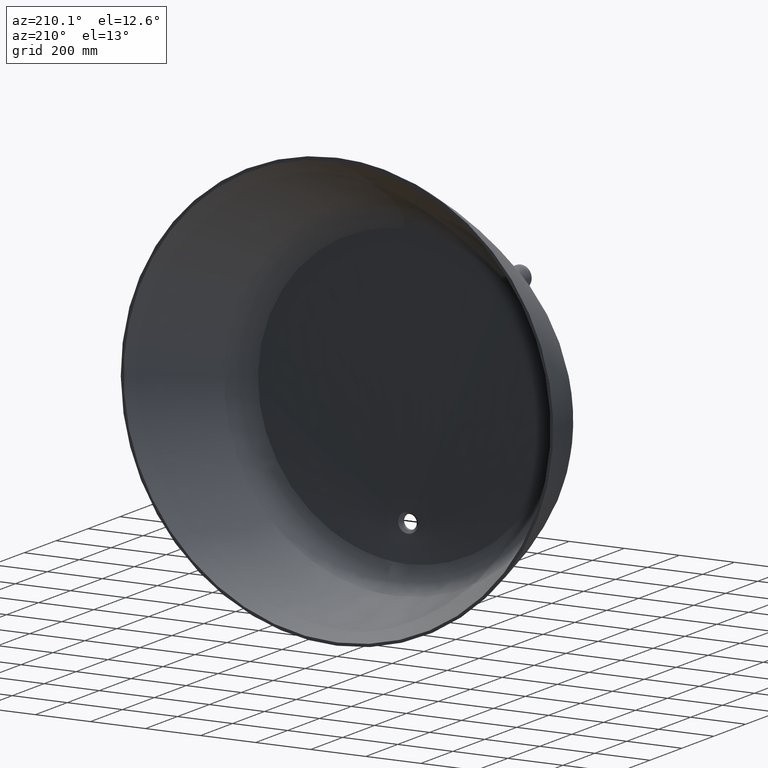
[diagram: clean part render]
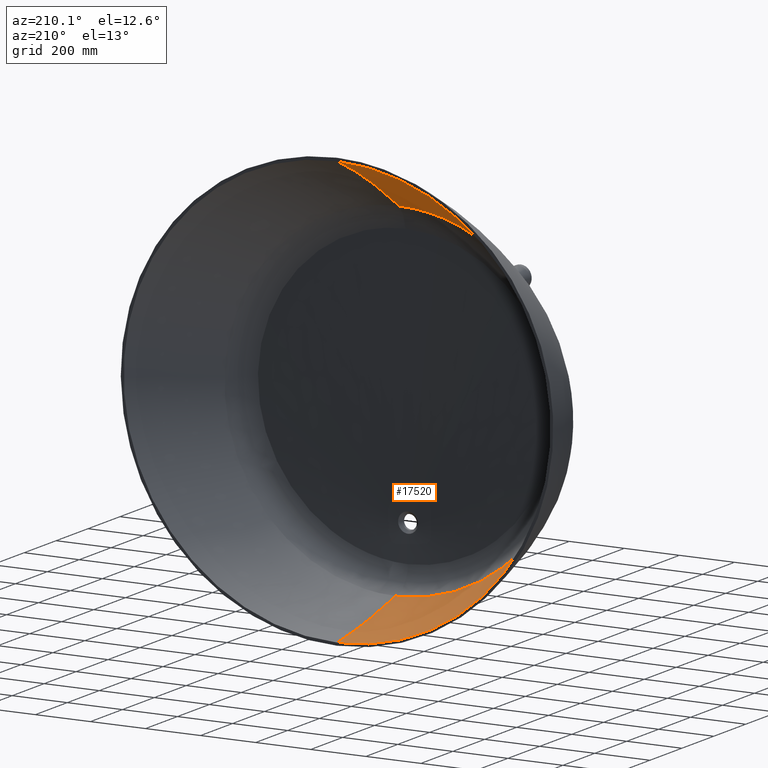
[diagram: same view with one face highlighted and labeled with its STEP entity id]
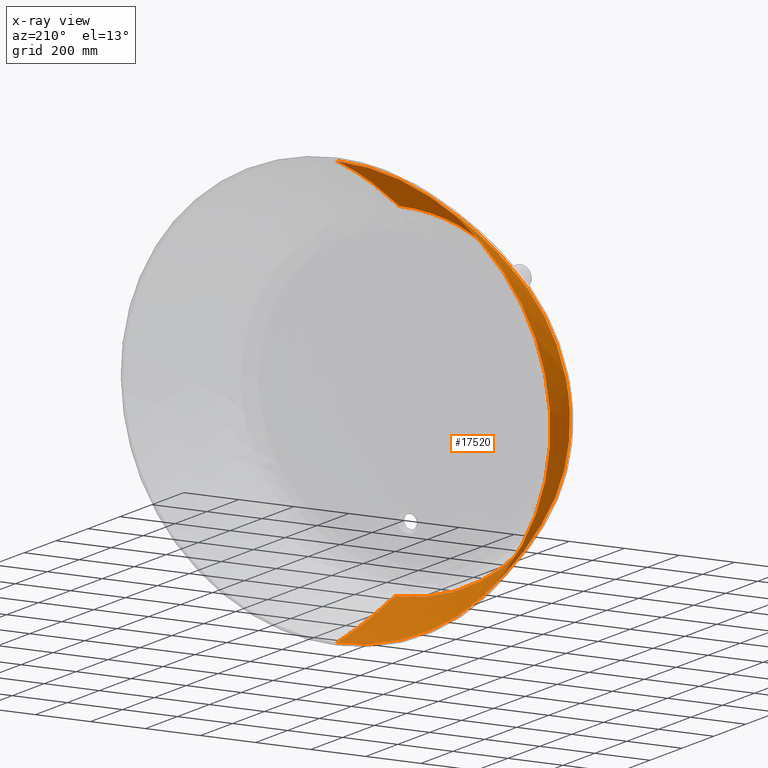
[diagram: x-ray of the same camera — body ghosted, the highlighted face saturated]
A machine part, auxiliary view. The second image highlights one B-rep face of the part: STEP entity #17520.
The next image is the same camera in x-ray: the body ghosted, the highlighted face saturated — about 0% of this face is hidden behind the body in this view.
In plain terms, the highlighted face is a freeform B-spline surface patch.
Its self-contained STEP definition (entity closure, byte-faithful):
#4 = CARTESIAN_POINT ( 'NONE',  ( 0.0000000000000000000, -297.3838663134795900, 622.5928938523248900 ) ) ;
#27 = CARTESIAN_POINT ( 'NONE',  ( 305.7611604307824100, -435.8092352312195900, -591.4995953875233000 ) ) ;
#62 = CARTESIAN_POINT ( 'NONE',  ( 54.11014445063838000, -433.0000000000000000, 523.3657880968273700 ) ) ;
#89 = CARTESIAN_POINT ( 'NONE',  ( 188.6298684609522800, -437.2252252396937100, -644.3340520681157400 ) ) ;
#95 = B_SPLINE_CURVE_WITH_KNOTS ( 'NONE', 3,
 ( #18225, #18200, #18112, #18095, #18093, #18047, #18044, #18028, #18026, #17999, #17979, #17976, #17959, #17954, #17930, #17907, #17895, #17893, #17869, #17848, #17845, #17829, #17825, #17801, #17782, #17779, #17763, #17760, #17733, #17707, #17695, #17692, #17665, #17647, #17632, #17603, #17582, #17567, #17548, #17522, #17505, #17483, #17454, #17438, #17416, #17394, #17375, #17354, #17326, #17309, #17305, #17290, #17288, #17243, #17239, #17224, #17198, #17183, #17177, #17162, #17131, #17114, #17109, #17095, #17093, #17070, #17056, #17052, #17042, #17040, #17014, #16994, #16991, #16978, #16975, #16926, #16911, #16907, #16877, #16858, #16855, #16837, #16791, #16789, #16771, #16743, #16721, #16718, #16702, #16699, #16677, #16659, #16657, #16640, #16637, #16610, #16585, #16582, #16567, #16564, #16539, #16521, #16517, #16475, #16454, #16440, #16438, #16411, #16390, #16387, #16371, #16368, #16338, #16315, #16299, #16297 ),
 .UNSPECIFIED., .F., .F.,
 ( 4, 2, 2, 2, 2, 2, 2, 2, 2, 2, 2, 2, 2, 2, 2, 2, 2, 2, 2, 2, 2, 2, 2, 2, 2, 2, 2, 2, 2, 2, 2, 2, 2, 2, 2, 2, 2, 2, 2, 2, 2, 2, 2, 2, 2, 2, 2, 2, 2, 2, 2, 2, 2, 2, 2, 2, 2, 4 ),
 ( 0.005483888633177570400, 0.06736697346587264300, 0.1292500582985677000, 0.1911331431312627800, 0.2066039143394366200, 0.2143392999435235200, 0.2220746855476104500, 0.2530162279639579500, 0.3148993127966530100, 0.3767823976293481200, 0.4077239400456956200, 0.4231947112538693700, 0.4309300968579562500, 0.4386654824620430700, 0.5005485672947379600, 0.5624316521274328500, 0.6243147369601276300, 0.6397855081683012600, 0.6475208937723879700, 0.6552562793764746800, 0.6861978217928215200, 0.7480809066255150700, 0.8099639914582086300, 0.8409055338745552400, 0.8563763050827286600, 0.8641116906868153700, 0.8718470762909021900, 0.9337301611235965200, 0.9956132459562908600, 1.057496330788985300, 1.072967101997158900, 1.088437873205332400, 1.119379415621679600, 1.181262500454373800, 1.243145585287067900, 1.274087127703414900, 1.281822513307501600, 1.289557898911588300, 1.305028670119761800, 1.366911754952455400, 1.428794839785149300, 1.490677924617843200, 1.506148695826016800, 1.521619467034190500, 1.552561009450537800, 1.614444094283232300, 1.676327179115926900, 1.707268721532274400, 1.715004107136361300, 1.722739492740448000, 1.738210263948621900, 1.800093348781317300, 1.861976433614012800, 1.923859518446708400, 1.931594904050795400, 1.939330289654882100, 1.954801060863055900, 1.985742603279403700 ),
 .UNSPECIFIED. ) ;
#120 = CARTESIAN_POINT ( 'NONE',  ( 159.6491507612339300, -434.3586511040934400, 503.2092834721302100 ) ) ;
#145 = CARTESIAN_POINT ( 'NONE',  ( 150.8485148012405000, 0.0000000000000000000, -761.4277657350625100 ) ) ;
#170 = CARTESIAN_POINT ( 'NONE',  ( 6.242857883646572100E-015, -390.3413858893720800, 555.0276758811979800 ) ) ;
#179 = CARTESIAN_POINT ( 'NONE',  ( 259.3212837439347700, -435.7250962621207600, 464.9110873811149000 ) ) ;
#205 = CARTESIAN_POINT ( 'NONE',  ( 23.97506095439439700, -147.0202623103244500, -754.5858267234164000 ) ) ;
#264 = CARTESIAN_POINT ( 'NONE',  ( -67.91794514592871200, -291.9380288156813800, -718.6904743591447900 ) ) ;
#326 = CARTESIAN_POINT ( 'NONE',  ( -189.0233365683527900, -433.0000000000010800, -645.6578599035248100 ) ) ;
#384 = CARTESIAN_POINT ( 'NONE',  ( -305.9872912158599000, -434.4046176156098800, -591.9098997187504700 ) ) ;
#446 = CARTESIAN_POINT ( 'NONE',  ( -408.7490046942713200, -435.7997582371668800, -514.4587708346164200 ) ) ;
#511 = CARTESIAN_POINT ( 'NONE',  ( -485.7090849502184300, -437.1857377644743700, -425.6788751515382500 ) ) ;
#572 = CARTESIAN_POINT ( 'NONE',  ( -618.7377897513923700, 0.0000000000000000000, -467.1892722093554700 ) ) ;
#632 = CARTESIAN_POINT ( 'NONE',  ( -650.8458804528634100, -149.0403485710966400, -353.0854340836209000 ) ) ;
#639 = ORIENTED_EDGE ( 'NONE', *, *, #15195, .T. ) ;
#655 = ORIENTED_EDGE ( 'NONE', *, *, #8324, .T. ) ;
#698 = CARTESIAN_POINT ( 'NONE',  ( -654.1730447965702500, -294.3704572891975300, -201.6501668386937900 ) ) ;
#710 = EDGE_CURVE ( 'NONE', #12180, #11731, #5807, .T. ) ;
#719 = CARTESIAN_POINT ( 'NONE',  ( 350.9445380440319000, -435.7348388295380900, 410.4773626385311900 ) ) ;
#757 = CARTESIAN_POINT ( 'NONE',  ( -600.9035312231751500, -432.9999999999996600, -61.21625332179456100 ) ) ;
#773 = CARTESIAN_POINT ( 'NONE',  ( 431.0583548895018600, -437.1178463521727600, 339.8960657120643400 ) ) ;
#813 = CARTESIAN_POINT ( 'NONE',  ( -592.1979238643232300, -434.3838735286277600, 18.68509778788859100 ) ) ;
#830 = CARTESIAN_POINT ( 'NONE',  ( 649.5697937014905400, 0.0000000000000000000, 425.0041547772556800 ) ) ;
#880 = CARTESIAN_POINT ( 'NONE',  ( -570.3287140858312800, -435.7655279168998800, 109.1981618926607100 ) ) ;
#902 = CARTESIAN_POINT ( 'NONE',  ( 666.6419153728082800, -150.0586947769284600, 266.0370553116929400 ) ) ;
#942 = CARTESIAN_POINT ( 'NONE',  ( -526.4023176114577600, -437.1387928721183600, 209.7118966733946200 ) ) ;
#960 = CARTESIAN_POINT ( 'NONE',  ( 647.4736730008161200, -294.7236041550086700, 122.3769190998803000 ) ) ;
#1003 = CARTESIAN_POINT ( 'NONE',  ( -688.1046550232690600, 0.0000000000000000000, 359.2513394103256100 ) ) ;
#1011 = CARTESIAN_POINT ( 'NONE',  ( -2.741950475292803400, -366.3501133852358900, -695.7595494632731700 ) ) ;
#1026 = CARTESIAN_POINT ( 'NONE',  ( 592.9375881177604700, -433.0000000000000000, 18.70379657388139800 ) ) ;
#1068 = CARTESIAN_POINT ( 'NONE',  ( -554.4672652220936000, -150.7336517645318800, 444.3904687546585100 ) ) ;
#1091 = CARTESIAN_POINT ( 'NONE',  ( 600.1943798853416200, -434.3840841284969100, -61.15685139543096200 ) ) ;
#1111 = ORIENTED_EDGE ( 'NONE', *, *, #710, .F. ) ;
#1123 = CARTESIAN_POINT ( 'NONE',  ( -4.569875922398247200, -366.3497702483722400, -695.7474528969444200 ) ) ;
#1132 = CARTESIAN_POINT ( 'NONE',  ( -404.9139251441333200, -296.2580585231197600, 481.8333811668189800 ) ) ;
#1157 = CARTESIAN_POINT ( 'NONE',  ( 589.6116897831367400, -435.7725908542172400, -185.0265314709968400 ) ) ;
#1197 = CARTESIAN_POINT ( 'NONE',  ( -260.0991932579636300, -432.9999999999992600, 466.5725374618540400 ) ) ;
#1220 = CARTESIAN_POINT ( 'NONE',  ( 553.2159767283286600, -437.1702586741873200, -305.5880500742554800 ) ) ;
#1260 = CARTESIAN_POINT ( 'NONE',  ( -159.6491507612343800, -434.3586511040937800, 503.2092834721306600 ) ) ;
#1270 = CARTESIAN_POINT ( 'NONE',  ( -5.483829750455197600, -366.3495421988548100, -695.7393898986117600 ) ) ;
#1285 = CARTESIAN_POINT ( 'NONE',  ( 648.1858319405694100, 0.0000000000000000000, -426.1437110660890000 ) ) ;
#1316 = CARTESIAN_POINT ( 'NONE',  ( -0.9139894285391388900, -366.3502283764489700, -695.7635832275606200 ) ) ;
#1324 = CARTESIAN_POINT ( 'NONE',  ( -53.96104286471473400, -435.7127556767267700, 521.4219100669868100 ) ) ;
#1348 = CARTESIAN_POINT ( 'NONE',  ( 562.9187307493265300, -148.5378905671475400, -485.4064215330688500 ) ) ;
#1384 = CARTESIAN_POINT ( 'NONE',  ( 8.933825901280555000E-015, -437.0684840105956800, 522.0722131844305500 ) ) ;
#1404 = CARTESIAN_POINT ( 'NONE',  ( 442.1003235904754500, -293.0120881416484600, -552.0491307555267900 ) ) ;
#1413 = CARTESIAN_POINT ( 'NONE',  ( 4.368305644365641600E-014, -366.3502283590847800, -695.7635832327056300 ) ) ;
#1440 = CARTESIAN_POINT ( 'NONE',  ( 5.204170427930421300E-015, 0.0000000000000000000, 775.0000000000001100 ) ) ;
#1470 = CARTESIAN_POINT ( 'NONE',  ( 306.2134220009419300, -432.9999999999999400, -592.3202040499682000 ) ) ;
#1506 = CARTESIAN_POINT ( 'NONE',  ( 68.93644255511458100, -152.3033191775637900, 704.0238090143565200 ) ) ;
#1533 = CARTESIAN_POINT ( 'NONE',  ( 188.8921805325529400, -434.4084084132318800, -645.2165906250511400 ) ) ;
#1567 = CARTESIAN_POINT ( 'NONE',  ( 183.1605899739299700, -297.1348895906112400, 596.5279815743100500 ) ) ;
#1595 = CARTESIAN_POINT ( 'NONE',  ( 63.62263202496182400, -435.8212394236861700, -671.8311553197016800 ) ) ;
#1635 = CARTESIAN_POINT ( 'NONE',  ( 260.0991932579642000, -432.9999999999997200, 466.5725374618544900 ) ) ;
#1661 = CARTESIAN_POINT ( 'NONE',  ( -21.15994916992843500, -437.2324909351331100, -673.6163284767175100 ) ) ;
#1725 = CARTESIAN_POINT ( 'NONE',  ( -75.96338235554280500, 0.0000000000000000000, -772.5090413060306700 ) ) ;
#1786 = CARTESIAN_POINT ( 'NONE',  ( -213.8500242975061400, -147.2561099448311100, -722.4170970127946700 ) ) ;
#1847 = CARTESIAN_POINT ( 'NONE',  ( -328.8265005089178900, -292.5382384390161400, -633.3506371722162400 ) ) ;
#1910 = CARTESIAN_POINT ( 'NONE',  ( -409.4029521236086600, -432.9999999999998300, -515.1958367154185200 ) ) ;
#1961 = CARTESIAN_POINT ( 'NONE',  ( -5.483829750455197600, -366.3495421988548100, -695.7393898986117600 ) ) ;
#1976 = CARTESIAN_POINT ( 'NONE',  ( -486.5554549411227800, -434.3952459214921800, -426.3186375339993200 ) ) ;
#2040 = CARTESIAN_POINT ( 'NONE',  ( -530.8420881411145700, -435.7839895720617300, -353.6414096653689400 ) ) ;
#2105 = CARTESIAN_POINT ( 'NONE',  ( -574.3318258205337100, -437.1640986280507400, -245.9862123389144100 ) ) ;
#2173 = CARTESIAN_POINT ( 'NONE',  ( -741.1008698803982500, 0.0000000000000000000, -231.0377133295234600 ) ) ;
#2192 = CARTESIAN_POINT ( 'NONE',  ( 352.0027613205045900, -433.0000000000005100, 411.8765002567329200 ) ) ;
#2240 = CARTESIAN_POINT ( 'NONE',  ( -729.2151711973076500, -149.6248405348724800, -73.05298852768402200 ) ) ;
#2261 = CARTESIAN_POINT ( 'NONE',  ( 432.3412139698383500, -434.3726154507241400, 340.9797401047237600 ) ) ;
#2263 = ORIENTED_EDGE ( 'NONE', *, *, #7641, .F. ) ;
#2304 = CARTESIAN_POINT ( 'NONE',  ( -666.9040134614734800, -294.6126471372092500, 20.57367517315682500 ) ) ;
#2322 = CARTESIAN_POINT ( 'NONE',  ( 499.1407628368500600, -435.7549734688653900, 256.5289693737577700 ) ) ;
#2367 = CARTESIAN_POINT ( 'NONE',  ( -571.8413603390662300, -433.0000000000001100, 109.4565688967238400 ) ) ;
#2384 = CARTESIAN_POINT ( 'NONE',  ( 550.2061187507437100, -437.1441512841977300, 160.5782938430637900 ) ) ;
#2423 = CARTESIAN_POINT ( 'NONE',  ( -527.8834732594153800, -434.3795976240393800, 210.2866159786754800 ) ) ;
#2442 = CARTESIAN_POINT ( 'NONE',  ( 762.2055395649053900, 0.0000000000000000000, 146.6767531234082800 ) ) ;
#2480 = CARTESIAN_POINT ( 'NONE',  ( -467.2332473553765300, -435.7502645612799500, 300.0997306415144400 ) ) ;
#2503 = CARTESIAN_POINT ( 'NONE',  ( 727.8542204021464400, -149.6453490248297300, 22.46210248702230300 ) ) ;
#2544 = CARTESIAN_POINT ( 'NONE',  ( -392.2485442103104000, -437.1100522982399600, 376.6856146218337400 ) ) ;
#2565 = CARTESIAN_POINT ( 'NONE',  ( 671.8186650067646000, -294.5915871504262800, -67.15644595808110800 ) ) ;
#2602 = CARTESIAN_POINT ( 'NONE',  ( -496.7401423418215200, 0.0000000000000000000, 596.5372776560940300 ) ) ;
#2621 = CARTESIAN_POINT ( 'NONE',  ( 590.8775987049688200, -433.0000000000011400, -185.3524851056575400 ) ) ;
#2662 = CARTESIAN_POINT ( 'NONE',  ( -335.3449453942651500, -151.7068455606114100, 622.1267617199406500 ) ) ;
#2681 = CARTESIAN_POINT ( 'NONE',  ( 554.2893026592272500, -434.3900862247292000, -306.0833318901071600 ) ) ;
#2722 = CARTESIAN_POINT ( 'NONE',  ( -183.1605899739300900, -297.1348895906115200, 596.5279815743106200 ) ) ;
#2747 = CARTESIAN_POINT ( 'NONE',  ( 509.4724177226237300, -435.7872012200471100, -390.3807009358076800 ) ) ;
#2787 = CARTESIAN_POINT ( 'NONE',  ( -54.11014445063852200, -433.0000000000001100, 523.3657880968272600 ) ) ;
#2812 = CARTESIAN_POINT ( 'NONE',  ( 452.9901645873632100, -437.1920557605087100, -467.8548582637491200 ) ) ;
#2847 = CARTESIAN_POINT ( 'NONE',  ( 8.760353553682875800E-015, -434.3561613368652300, 524.0240710614771200 ) ) ;
#2868 = CARTESIAN_POINT ( 'NONE',  ( 488.5547328497584700, 0.0000000000000000000, -603.1809863304646300 ) ) ;
#2901 = CARTESIAN_POINT ( 'NONE',  ( 18.01973297300037300, -435.7123226737304000, 523.0481421229537800 ) ) ;
#2924 = CARTESIAN_POINT ( 'NONE',  ( 347.8742944695927100, -147.6252627640579600, -664.7042843853540700 ) ) ;
#2959 = CARTESIAN_POINT ( 'NONE',  ( 107.0542047399245900, -437.0718127211293900, 513.2447239003588500 ) ) ;
#2981 = CARTESIAN_POINT ( 'NONE',  ( 202.1389401483861300, -292.1591586769105800, -689.7847877502889600 ) ) ;
#3013 = CARTESIAN_POINT ( 'NONE',  ( 226.7125149997970700, 0.0000000000000000000, 742.4314092502914900 ) ) ;
#3039 = CARTESIAN_POINT ( 'NONE',  ( 63.70685385086311200, -432.9999999999997700, -672.7499654969456100 ) ) ;
#3074 = CARTESIAN_POINT ( 'NONE',  ( 335.3449453942668000, -151.7068455606115500, 622.1267617199422400 ) ) ;
#3098 = CARTESIAN_POINT ( 'NONE',  ( -21.18768426140101000, -434.4108303117110900, -674.5387761589059900 ) ) ;
#3160 = CARTESIAN_POINT ( 'NONE',  ( -126.8221164279531300, -435.8195019747760700, -661.6715714592431800 ) ) ;
#3226 = CARTESIAN_POINT ( 'NONE',  ( -248.4818807447961100, -437.2200128929625900, -620.8711001833107700 ) ) ;
#3281 = CARTESIAN_POINT ( 'NONE',  ( -363.1709638397795700, 0.0000000000000000000, -686.0144536872326200 ) ) ;
#3353 = CARTESIAN_POINT ( 'NONE',  ( -468.5932471028324400, -148.0867037880920200, -581.4903959252744700 ) ) ;
#3423 = CARTESIAN_POINT ( 'NONE',  ( -529.2971394817938100, -293.4754078508906300, -458.6266378482862900 ) ) ;
#3489 = CARTESIAN_POINT ( 'NONE',  ( -531.8289491088502200, -432.9999999999989800, -354.1962416131901800 ) ) ;
#3561 = CARTESIAN_POINT ( 'NONE',  ( -575.5048353464462700, -434.3880328760153600, -246.4014288587193300 ) ) ;
#3624 = CARTESIAN_POINT ( 'NONE',  ( -597.7849739403136500, -435.7699057059005600, -123.0829835365660300 ) ) ;
#3646 = CARTESIAN_POINT ( 'NONE',  ( 453.2646619510280200, -151.2359453367022600, 543.6688485372793600 ) ) ;
#3690 = CARTESIAN_POINT ( 'NONE',  ( -595.6668901898677900, -437.1516205858836800, -20.19734919600163200 ) ) ;
#3711 = CARTESIAN_POINT ( 'NONE',  ( 497.1255975268348900, -295.7384549275690200, 395.7052969340266500 ) ) ;
#3747 = CARTESIAN_POINT ( 'NONE',  ( -775.0000000000001100, 0.0000000000000000000, 24.35005439757211600 ) ) ;
#3765 = CARTESIAN_POINT ( 'NONE',  ( 500.5758450979989200, -433.0000000000001700, 257.2728067434025000 ) ) ;
#3807 = CARTESIAN_POINT ( 'NONE',  ( -711.1792148397227000, -149.7526096313869700, 134.8302116162416800 ) ) ;
#3824 = CARTESIAN_POINT ( 'NONE',  ( 551.7129826841398900, -434.3813837613992600, 160.9899030778175000 ) ) ;
#3833 = CARTESIAN_POINT ( 'NONE',  ( 5.639960406974176700E-017, -267.1029214846332100, 639.8670371497393000 ) ) ;
#3865 = CARTESIAN_POINT ( 'NONE',  ( -602.6818334812745700, -295.0402375960478600, 239.3099408953584400 ) ) ;
#3886 = CARTESIAN_POINT ( 'NONE',  ( 584.9877333045443500, -435.7673140542591500, 55.55617367559426600 ) ) ;
#3924 = CARTESIAN_POINT ( 'NONE',  ( -468.6019811038156600, -432.9999999999994900, 301.0145557328491500 ) ) ;
#3949 = CARTESIAN_POINT ( 'NONE',  ( 595.6668901898677900, -437.1516205858837900, -20.19734919600177000 ) ) ;
#3987 = CARTESIAN_POINT ( 'NONE',  ( -393.4272719139831900, -434.3700174327468600, 377.9319628531213200 ) ) ;
#4015 = CARTESIAN_POINT ( 'NONE',  ( 772.3065303726635900, 0.0000000000000000000, -78.84616767817196600 ) ) ;
#4049 = CARTESIAN_POINT ( 'NONE',  ( -306.3342912710075400, -435.7298051697051700, 439.7446291011011100 ) ) ;
#4075 = CARTESIAN_POINT ( 'NONE',  ( 704.4893914163840200, -149.4095013903236400, -216.9316905055023900 ) ) ;
#4115 = CARTESIAN_POINT ( 'NONE',  ( -209.9259142418468700, -437.0813117243600900, 484.9302047065418700 ) ) ;
#4137 = CARTESIAN_POINT ( 'NONE',  ( 608.4922621696047100, -293.9913775270902600, -331.0950635906158400 ) ) ;
#4180 = CARTESIAN_POINT ( 'NONE',  ( -226.7125149997967500, 0.0000000000000000000, 742.4314092502926300 ) ) ;
#4199 = CARTESIAN_POINT ( 'NONE',  ( 510.3891909101150200, -432.9999999999998300, -390.9792426852506500 ) ) ;
#4240 = CARTESIAN_POINT ( 'NONE',  ( -68.93644255511426900, -152.3033191775638500, 704.0238090143574300 ) ) ;
#4261 = CARTESIAN_POINT ( 'NONE',  ( 453.7484945602706700, -434.3973519201697400, -468.5417276745772000 ) ) ;
#4282 = CARTESIAN_POINT ( 'NONE',  ( 1.376606842177539300E-013, 0.0000000000000000000, -775.0000000000001100 ) ) ;
#4302 = CARTESIAN_POINT ( 'NONE',  ( 0.0000000000000000000, -297.3838663134795900, 622.5928938523248900 ) ) ;
#4310 = CARTESIAN_POINT ( 'NONE',  ( 3.029928198480893500E-014, -123.9641990850733200, -757.7872253766352100 ) ) ;
#4327 = CARTESIAN_POINT ( 'NONE',  ( 359.3462869381753000, -435.8046546840952800, -555.7365932957478700 ) ) ;
#4347 = CARTESIAN_POINT ( 'NONE',  ( 4.980985570237048500E-015, -246.4186592649845100, -731.2970916750927000 ) ) ;
#4362 = CARTESIAN_POINT ( 'NONE',  ( 18.06835603627866900, -432.9999999999999400, 525.0000000000003400 ) ) ;
#4382 = CARTESIAN_POINT ( 'NONE',  ( 248.4818807447968000, -437.2200128929628700, -620.8711001833147500 ) ) ;
#4417 = CARTESIAN_POINT ( 'NONE',  ( 107.3602290647238100, -434.3572709070430200, 515.1524619417089100 ) ) ;
#4443 = CARTESIAN_POINT ( 'NONE',  ( 224.0840344405372100, 0.0000000000000000000, -743.1718403196454100 ) ) ;
#4480 = CARTESIAN_POINT ( 'NONE',  ( 210.2379425386198200, -435.7208744829065900, 485.8128354358358900 ) ) ;
#4505 = CARTESIAN_POINT ( 'NONE',  ( 72.00556099073332900, -147.0407708002814500, -752.0734509748132300 ) ) ;
#4544 = CARTESIAN_POINT ( 'NONE',  ( 305.8724542030477700, -437.0947077545586100, 438.9753725981215700 ) ) ;
#4551 = CARTESIAN_POINT ( 'NONE',  ( 4.368305644365641600E-014, -366.3502283590847800, -695.7635832327056300 ) ) ;
#4567 = CARTESIAN_POINT ( 'NONE',  ( -22.58830638076596700, -291.9169688288976100, -721.1223841094272300 ) ) ;
#4626 = CARTESIAN_POINT ( 'NONE',  ( -126.9939416179956900, -432.9999999999993200, -662.5759600739043000 ) ) ;
#4689 = CARTESIAN_POINT ( 'NONE',  ( -248.8376490096945600, -434.4066709643201400, -621.7254798501362500 ) ) ;
#4761 = CARTESIAN_POINT ( 'NONE',  ( -359.3462869381767200, -435.8046546840945400, -555.7365932957436600 ) ) ;
#4827 = CARTESIAN_POINT ( 'NONE',  ( -452.9901645873645200, -437.1920557605076300, -467.8548582637448600 ) ) ;
#4896 = CARTESIAN_POINT ( 'NONE',  ( -587.3790621428664700, 0.0000000000000000000, -506.6776575739865500 ) ) ;
#4961 = CARTESIAN_POINT ( 'NONE',  ( -620.1443527243646900, -148.8544903808596000, -406.0082759903702900 ) ) ;
#5034 = CARTESIAN_POINT ( 'NONE',  ( -634.7418164050309300, -294.1967123982295800, -267.3698631088669200 ) ) ;
#5078 = CARTESIAN_POINT ( 'NONE',  ( 4.368305644365641600E-014, -366.3502283590847800, -695.7635832327056300 ) ) ;
#5099 = CARTESIAN_POINT ( 'NONE',  ( -599.1338388435607400, -432.9999999999993700, -123.3101311465365300 ) ) ;
#5119 = CARTESIAN_POINT ( 'NONE',  ( 392.2485442103105700, -437.1100522982401900, 376.6856146218319200 ) ) ;
#5163 = CARTESIAN_POINT ( 'NONE',  ( -597.1198477953548700, -434.3838735286278700, -20.23785455613530700 ) ) ;
#5185 = CARTESIAN_POINT ( 'NONE',  ( 604.5465050154097100, 0.0000000000000000000, 486.9388067229706400 ) ) ;
#5226 = CARTESIAN_POINT ( 'NONE',  ( -584.9877333045436700, -435.7673140542596000, 55.55617367559411000 ) ) ;
#5245 = CARTESIAN_POINT ( 'NONE',  ( 635.0393495460867800, -150.2627515406223600, 328.5995430866516900 ) ) ;
#5281 = CARTESIAN_POINT ( 'NONE',  ( -550.2061187507436000, -437.1441512841977300, 160.5782938430646100 ) ) ;
#5301 = CARTESIAN_POINT ( 'NONE',  ( 627.8096113206412400, -294.8616238600773700, 181.7761694328800100 ) ) ;
#5345 = CARTESIAN_POINT ( 'NONE',  ( -719.8444381912444200, 0.0000000000000000000, 290.4313144185229600 ) ) ;
#5366 = CARTESIAN_POINT ( 'NONE',  ( 586.4873126868175200, -432.9999999999996000, 55.67512519758647500 ) ) ;
#5407 = CARTESIAN_POINT ( 'NONE',  ( -597.5387329889554200, -150.4903533155117800, 388.2628813407617400 ) ) ;
#5423 = CARTESIAN_POINT ( 'NONE',  ( 597.1198477953548700, -434.3838735286279900, -20.23785455613544600 ) ) ;
#5470 = CARTESIAN_POINT ( 'NONE',  ( -452.9530209494597000, -295.9982567253446200, 440.8725485331442500 ) ) ;
#5492 = CARTESIAN_POINT ( 'NONE',  ( 597.7849739403093300, -435.7699057058987900, -123.0829835365660500 ) ) ;
#5525 = CARTESIAN_POINT ( 'NONE',  ( -307.2579654069289700, -432.9999999999994900, 441.2831421070620800 ) ) ;
#5547 = CARTESIAN_POINT ( 'NONE',  ( 574.3318258205320000, -437.1640986280525600, -245.9862123389161500 ) ) ;
#5586 = CARTESIAN_POINT ( 'NONE',  ( -210.5499708353928000, -434.3604372414529800, 486.6954661651309900 ) ) ;
#5606 = CARTESIAN_POINT ( 'NONE',  ( 681.2706807202552000, 0.0000000000000000000, -372.0646709595393400 ) ) ;
#5644 = CARTESIAN_POINT ( 'NONE',  ( -107.2072169023246600, -435.7145418140866600, 514.1985929210338800 ) ) ;
#5661 = CARTESIAN_POINT ( 'NONE',  ( 592.5150181867900300, -148.6981131449372200, -446.4039223578286600 ) ) ;
#5705 = CARTESIAN_POINT ( 'NONE',  ( -17.99542144136118100, -437.0684840105956800, 522.0722131844305500 ) ) ;
#5730 = CARTESIAN_POINT ( 'NONE',  ( 492.0441581920984500, -293.2648079830532900, -503.2286329213926600 ) ) ;
#5770 = CARTESIAN_POINT ( 'NONE',  ( 8.847089727481716200E-015, -435.7123226737304500, 523.0481421229537800 ) ) ;
#5773 = CARTESIAN_POINT ( 'NONE',  ( 5.204170427930421300E-015, 0.0000000000000000000, 775.0000000000001100 ) ) ;
#5802 = CARTESIAN_POINT ( 'NONE',  ( 359.8980280848669500, -433.0000000000010800, -556.5181178752711700 ) ) ;
#5807 = B_SPLINE_CURVE_WITH_KNOTS ( 'NONE', 3,
 ( #170, #3833, #18642, #9415 ),
 .UNSPECIFIED., .F., .F.,
 ( 4, 4 ),
 ( 0.1041027668406857800, 1.000000000000000000 ),
 .UNSPECIFIED. ) ;
#5814 = FACE_OUTER_BOUND ( 'NONE', #16195, .T. ) ;
#5833 = CARTESIAN_POINT ( 'NONE',  ( 22.93066236410823300, -152.3242480764042200, 706.3455602709594800 ) ) ;
#5860 = CARTESIAN_POINT ( 'NONE',  ( 248.8376490096952700, -434.4066709643203700, -621.7254798501401200 ) ) ;
#5893 = CARTESIAN_POINT ( 'NONE',  ( 122.8144574670846100, -297.2729092956796000, 611.4932330298908000 ) ) ;
#5913 = CARTESIAN_POINT ( 'NONE',  ( 126.8221164279536600, -435.8195019747761300, -661.6715714592480700 ) ) ;
#5951 = CARTESIAN_POINT ( 'NONE',  ( 210.8619991321657500, -432.9999999999994300, 487.5780968944250700 ) ) ;
#5973 = CARTESIAN_POINT ( 'NONE',  ( 21.15994916992843900, -437.2324909351331100, -673.6163284767176300 ) ) ;
#6008 = CARTESIAN_POINT ( 'NONE',  ( 306.7961283389692000, -434.3649025848529300, 440.5138856040825300 ) ) ;
#6032 = CARTESIAN_POINT ( 'NONE',  ( -25.36181552802297600, 0.0000000000000000000, -775.0000000000001100 ) ) ;
#6086 = CARTESIAN_POINT ( 'NONE',  ( -143.5475110014407100, -147.1253683213541600, -740.8751315824232500 ) ) ;
#6118 = ORIENTED_EDGE ( 'NONE', *, *, #9276, .F. ) ;
#6155 = CARTESIAN_POINT ( 'NONE',  ( -266.8039463870667900, -292.3329035678745000, -664.8716530248258300 ) ) ;
#6209 = CARTESIAN_POINT ( 'NONE',  ( -359.8980280848682600, -433.0000000000003400, -556.5181178752669700 ) ) ;
#6278 = CARTESIAN_POINT ( 'NONE',  ( -453.7484945602719800, -434.3973519201686600, -468.5417276745729400 ) ) ;
#6349 = CARTESIAN_POINT ( 'NONE',  ( -509.4724177226237300, -435.7872012200472200, -390.3807009358065400 ) ) ;
#6413 = CARTESIAN_POINT ( 'NONE',  ( -553.2159767283275200, -437.1702586741894800, -305.5880500742599700 ) ) ;
#6476 = CARTESIAN_POINT ( 'NONE',  ( -714.5819006295626000, 0.0000000000000000000, -303.2424236014016400 ) ) ;
#6536 = CARTESIAN_POINT ( 'NONE',  ( -720.6055213219352700, -149.5402430137994300, -145.6123695219424100 ) ) ;
#6556 = CARTESIAN_POINT ( 'NONE',  ( 393.4272719139833600, -434.3700174327470300, 377.9319628531195000 ) ) ;
#6600 = CARTESIAN_POINT ( 'NONE',  ( -670.4942068724539000, -294.6126471372092500, -22.28337524288606300 ) ) ;
#6616 = CARTESIAN_POINT ( 'NONE',  ( 467.2332473553770500, -435.7502645612798300, 300.0997306415161500 ) ) ;
#6653 = CARTESIAN_POINT ( 'NONE',  ( -586.4873126868168400, -433.0000000000000600, 55.67512519758631100 ) ) ;
#6672 = CARTESIAN_POINT ( 'NONE',  ( 526.4023176114569700, -437.1387928721194400, 209.7118966733934800 ) ) ;
#6711 = CARTESIAN_POINT ( 'NONE',  ( -551.7129826841395500, -434.3813837613992600, 160.9899030778183000 ) ) ;
#6732 = CARTESIAN_POINT ( 'NONE',  ( 744.5813416717148800, 0.0000000000000000000, 219.3145724209950100 ) ) ;
#6771 = CARTESIAN_POINT ( 'NONE',  ( -499.1407628368505100, -435.7549734688648800, 256.5289693737571500 ) ) ;
#6787 = CARTESIAN_POINT ( 'NONE',  ( 723.7981524929243700, -149.6662779236700400, 67.51315960061552300 ) ) ;
#6822 = CARTESIAN_POINT ( 'NONE',  ( -431.0583548895015700, -437.1178463521728800, 339.8960657120644600 ) ) ;
#6840 = CARTESIAN_POINT ( 'NONE',  ( 670.4942068724539000, -294.6126471372092500, -22.28337524288606600 ) ) ;
#6883 = CARTESIAN_POINT ( 'NONE',  ( -553.4381302431585300, 0.0000000000000000000, 544.3389075745328700 ) ) ;
#6906 = CARTESIAN_POINT ( 'NONE',  ( 599.1338388435565300, -432.9999999999977300, -123.3101311465365500 ) ) ;
#6949 = CARTESIAN_POINT ( 'NONE',  ( -396.1147107713647400, -151.4792437857218800, 585.7382312198283200 ) ) ;
#6972 = CARTESIAN_POINT ( 'NONE',  ( 575.5048353464445700, -434.3880328760171800, -246.4014288587210600 ) ) ;
#7018 = CARTESIAN_POINT ( 'NONE',  ( -242.0648288094616000, -296.9562758546405800, 575.8411698238821800 ) ) ;
#7043 = CARTESIAN_POINT ( 'NONE',  ( 530.8420881411149100, -435.7839895720628100, -353.6414096653714400 ) ) ;
#7078 = CARTESIAN_POINT ( 'NONE',  ( -107.5132412271238600, -433.0000000000002800, 516.1063309623840500 ) ) ;
#7104 = CARTESIAN_POINT ( 'NONE',  ( 485.7090849502181400, -437.1857377644729500, -425.6788751515372800 ) ) ;
#7146 = CARTESIAN_POINT ( 'NONE',  ( -18.04404450463948000, -434.3561613368652300, 524.0240710614771200 ) ) ;
#7168 = CARTESIAN_POINT ( 'NONE',  ( 544.7410902984132700, 0.0000000000000000000, -552.9712296995719500 ) ) ;
#7231 = CARTESIAN_POINT ( 'NONE',  ( 410.2219936116657700, -147.8482925923414900, -626.0895525580051500 ) ) ;
#7266 = CARTESIAN_POINT ( 'NONE',  ( 53.88649207175269100, -437.0691335150900200, 520.4499710520666400 ) ) ;
#7296 = CARTESIAN_POINT ( 'NONE',  ( 266.8039463870678100, -292.3329035678747200, -664.8716530248291300 ) ) ;
#7334 = CARTESIAN_POINT ( 'NONE',  ( 152.0859280497161000, 0.0000000000000000000, 761.2237765792318700 ) ) ;
#7368 = CARTESIAN_POINT ( 'NONE',  ( 126.9939416179962100, -432.9999999999993700, -662.5759600739091900 ) ) ;
#7410 = CARTESIAN_POINT ( 'NONE',  ( 271.5757564139201500, -151.9109023243056500, 652.4409639644734400 ) ) ;
#7434 = CARTESIAN_POINT ( 'NONE',  ( 21.18768426140101400, -434.4108303117110900, -674.5387761589061000 ) ) ;
#7470 = CARTESIAN_POINT ( 'NONE',  ( 353.4416722029990900, -296.5097415147147300, 518.2087924051096500 ) ) ;
#7500 = CARTESIAN_POINT ( 'NONE',  ( -63.62263202496168200, -435.8212394236865100, -671.8311553197040700 ) ) ;
#7552 = B_SPLINE_CURVE_WITH_KNOTS ( 'NONE', 3,
 ( #1413, #1316, #1011, #1123, #1270 ),
 .UNSPECIFIED., .F., .F.,
 ( 4, 1, 4 ),
 ( 5.472477624076028300E-009, 0.002741947052827597600, 0.005483888633177570400 ),
 .UNSPECIFIED. ) ;
#7559 = CARTESIAN_POINT ( 'NONE',  ( -188.6298684609518000, -437.2252252396938800, -644.3340520681217600 ) ) ;
#7629 = CARTESIAN_POINT ( 'NONE',  ( -295.0561991317799200, 0.0000000000000000000, -717.9510264323727100 ) ) ;
#7641 = EDGE_CURVE ( 'NONE', #9952, #12180, #95, .T. ) ;
#7690 = CARTESIAN_POINT ( 'NONE',  ( -410.2219936116673000, -147.8482925923412400, -626.0895525580037900 ) ) ;
#7763 = CARTESIAN_POINT ( 'NONE',  ( -492.0441581920995300, -293.2648079830525500, -503.2286329213906100 ) ) ;
#7831 = CARTESIAN_POINT ( 'NONE',  ( -510.3891909101150200, -432.9999999999999400, -390.9792426852495200 ) ) ;
#7894 = CARTESIAN_POINT ( 'NONE',  ( -554.2893026592261100, -434.3900862247313100, -306.0833318901116500 ) ) ;
#7963 = CARTESIAN_POINT ( 'NONE',  ( -589.6116897831342400, -435.7725908542175300, -185.0265314709988600 ) ) ;
#8010 = CARTESIAN_POINT ( 'NONE',  ( 6.242857883646572100E-015, -390.3413858893720800, 555.0276758811979800 ) ) ;
#8032 = CARTESIAN_POINT ( 'NONE',  ( -598.7760772096675100, -437.1522523854868000, -61.03804754270595400 ) ) ;
#8054 = CARTESIAN_POINT ( 'NONE',  ( 452.9530209494580500, -295.9982567253447900, 440.8725485331426100 ) ) ;
#8100 = CARTESIAN_POINT ( 'NONE',  ( -775.0000000000001100, 0.0000000000000000000, -26.37357665847393000 ) ) ;
#8121 = CARTESIAN_POINT ( 'NONE',  ( 468.6019811038161700, -432.9999999999993700, 301.0145557328507900 ) ) ;
#8167 = CARTESIAN_POINT ( 'NONE',  ( -723.7981524929225500, -149.6662779236701800, 67.51315960061600700 ) ) ;
#8184 = CARTESIAN_POINT ( 'NONE',  ( 527.8834732594147000, -434.3795976240404600, 210.2866159786743500 ) ) ;
#8227 = CARTESIAN_POINT ( 'NONE',  ( -627.8096113206391900, -294.8616238600773700, 181.7761694328801800 ) ) ;
#8245 = CARTESIAN_POINT ( 'NONE',  ( 570.3287140858329800, -435.7655279168989200, 109.1981618926607900 ) ) ;
#8287 = CARTESIAN_POINT ( 'NONE',  ( -500.5758450979993800, -432.9999999999996600, 257.2728067434018200 ) ) ;
#8310 = CARTESIAN_POINT ( 'NONE',  ( 590.7185953574492000, -437.1516205858836800, 18.64770021590313600 ) ) ;
#8324 = EDGE_CURVE ( 'NONE', #11705, #11731, #16769, .T. ) ;
#8355 = CARTESIAN_POINT ( 'NONE',  ( -432.3412139698381200, -434.3726154507242500, 340.9797401047238700 ) ) ;
#8380 = CARTESIAN_POINT ( 'NONE',  ( 775.0000000000002300, 0.0000000000000000000, -26.37357665847374500 ) ) ;
#8416 = CARTESIAN_POINT ( 'NONE',  ( -350.9445380440315000, -435.7348388295376400, 410.4773626385317600 ) ) ;
#8441 = CARTESIAN_POINT ( 'NONE',  ( 720.6055213219340200, -149.5402430137988900, -145.6123695219429800 ) ) ;
#8483 = CARTESIAN_POINT ( 'NONE',  ( -258.9323289869194600, -437.0876443931808200, 464.0803623407446700 ) ) ;
#8500 = CARTESIAN_POINT ( 'NONE',  ( 634.7418164050312700, -294.1967123982308300, -267.3698631088692000 ) ) ;
#8536 = CARTESIAN_POINT ( 'NONE',  ( -299.2755045428880900, 0.0000000000000000000, 716.2710783824356900 ) ) ;
#8556 = CARTESIAN_POINT ( 'NONE',  ( 531.8289491088505700, -433.0000000000001100, -354.1962416131928000 ) ) ;
#8597 = CARTESIAN_POINT ( 'NONE',  ( -137.6823229628633700, -152.2169874698471400, 693.6055054348175900 ) ) ;
#8623 = CARTESIAN_POINT ( 'NONE',  ( 486.5554549411224900, -434.3952459214907500, -426.3186375339984100 ) ) ;
#8665 = CARTESIAN_POINT ( 'NONE',  ( -20.49950920019341200, -297.3838663134795900, 622.5928938523248900 ) ) ;
#8689 = CARTESIAN_POINT ( 'NONE',  ( 408.7490046942724600, -435.7997582371663700, -514.4587708346126600 ) ) ;
#8726 = CARTESIAN_POINT ( 'NONE',  ( 8.673617379884035500E-015, -433.0000000000000000, 525.0000000000003400 ) ) ;
#8752 = CARTESIAN_POINT ( 'NONE',  ( 305.5350296457025900, -437.2138528468294700, -591.0892910563007900 ) ) ;
#8787 = CARTESIAN_POINT ( 'NONE',  ( 54.03559365767647900, -434.3563778383633600, 522.3938490819070900 ) ) ;
#8814 = CARTESIAN_POINT ( 'NONE',  ( 295.0561991317811100, 0.0000000000000000000, -717.9510264323765800 ) ) ;
#8845 = CARTESIAN_POINT ( 'NONE',  ( 159.4163642343755500, -435.7173022081873300, 502.2853359661680800 ) ) ;
#8872 = CARTESIAN_POINT ( 'NONE',  ( 143.5475110014409400, -147.1253683213541900, -740.8751315824256400 ) ) ;
#8914 = CARTESIAN_POINT ( 'NONE',  ( 258.9323289869200300, -437.0876443931812800, 464.0803623407451300 ) ) ;
#8945 = CARTESIAN_POINT ( 'NONE',  ( 22.58830638076581100, -291.9169688288976100, -721.1223841094272300 ) ) ;
#9003 = CARTESIAN_POINT ( 'NONE',  ( -63.70685385086299800, -433.0000000000001100, -672.7499654969479900 ) ) ;
#9067 = CARTESIAN_POINT ( 'NONE',  ( -188.8921805325524600, -434.4084084132320500, -645.2165906250570500 ) ) ;
#9133 = CARTESIAN_POINT ( 'NONE',  ( -305.7611604307801400, -435.8092352312197000, -591.4995953875280700 ) ) ;
#9200 = CARTESIAN_POINT ( 'NONE',  ( -408.4220309796026500, -437.1996373557503800, -514.0902378942154200 ) ) ;
#9265 = CARTESIAN_POINT ( 'NONE',  ( -544.7410902984171300, 0.0000000000000000000, -552.9712296995724000 ) ) ;
#9276 = EDGE_CURVE ( 'NONE', #14542, #9952, #7552, .T. ) ;
#9313 = B_SPLINE_SURFACE_WITH_KNOTS ( 'NONE', 3, 3, ( 
 ( #16083, #5770, #17599, #8726, #4, #10225, #1440 ),
 ( #11761, #2901, #13208, #4362, #14667, #5833, #16141 ),
 ( #7266, #17661, #8787, #62, #10288, #1506, #11826 ),
 ( #2959, #13260, #4417, #14732, #5893, #16200, #7334 ),
 ( #17726, #8845, #120, #10350, #1567, #11886, #3013 ),
 ( #13321, #4480, #14793, #5951, #16265, #7410, #17796 ),
 ( #8914, #179, #10412, #1635, #11944, #3074, #13388 ),
 ( #4544, #14852, #6008, #16332, #7470, #17863, #12234 ),
 ( #9498, #719, #10978, #2192, #12501, #3646, #13952 ),
 ( #5119, #15400, #6556, #16924, #8054, #18436, #9559 ),
 ( #773, #11045, #2261, #12571, #3711, #14020, #5185 ),
 ( #15472, #6616, #16992, #8121, #18500, #9617, #830 ),
 ( #11114, #2322, #12639, #3765, #14079, #5245, #15536 ),
 ( #6672, #17053, #8184, #18568, #9681, #902, #11183 ),
 ( #2384, #12697, #3824, #14135, #5301, #15605, #6732 ),
 ( #17110, #8245, #18630, #9747, #960, #11249, #2442 ),
 ( #12746, #3886, #14197, #5366, #15665, #6787, #17179 ),
 ( #8310, #18696, #9810, #1026, #11317, #2503, #12805 ),
 ( #3949, #14261, #5423, #15732, #6840, #17240, #8380 ),
 ( #18752, #9871, #1091, #11390, #2565, #12862, #4015 ),
 ( #14323, #5492, #15795, #6906, #17307, #8441, #18816 ),
 ( #9937, #1157, #11460, #2621, #12925, #4075, #14389 ),
 ( #5547, #15860, #6972, #17372, #8500, #18873, #9998 ),
 ( #1220, #11524, #2681, #12988, #4137, #14450, #5606 ),
 ( #15920, #7043, #17435, #8556, #18934, #10064, #1285 ),
 ( #11589, #2747, #13056, #4199, #14511, #5661, #15983 ),
 ( #7104, #17500, #8623, #18999, #10128, #1348, #11656 ),
 ( #2812, #13114, #4261, #14572, #5730, #16045, #7168 ),
 ( #17563, #8689, #19053, #10189, #1404, #11724, #2868 ),
 ( #13172, #4327, #14636, #5802, #16109, #7231, #17626 ),
 ( #8752, #27, #10251, #1470, #11790, #2924, #13229 ),
 ( #4382, #14694, #5860, #16167, #7296, #17688, #8814 ),
 ( #89, #10317, #1533, #11850, #2981, #13283, #4443 ),
 ( #14755, #5913, #16228, #7368, #17756, #8872, #145 ),
 ( #10369, #1595, #11910, #3039, #13348, #4505, #14819 ),
 ( #5973, #16293, #7434, #17822, #8945, #205, #10438 ),
 ( #1661, #11968, #3098, #13416, #4567, #14880, #6032 ),
 ( #16364, #7500, #17889, #9003, #264, #10500, #1725 ),
 ( #12024, #3160, #13482, #4626, #14953, #6086, #16434 ),
 ( #7559, #17950, #9067, #326, #10568, #1786, #12086 ),
 ( #3226, #13542, #4689, #15005, #6155, #16494, #7629 ),
 ( #18023, #9133, #384, #10631, #1847, #12151, #3281 ),
 ( #13610, #4761, #15062, #6209, #16561, #7690, #18089 ),
 ( #9200, #446, #10696, #1910, #12218, #3353, #13679 ),
 ( #4827, #15123, #6278, #16633, #7763, #18153, #9265 ),
 ( #511, #10766, #1976, #12289, #3423, #13747, #4896 ),
 ( #15186, #6349, #16694, #7831, #18220, #9337, #572 ),
 ( #10828, #2040, #12350, #3489, #13802, #4961, #15245 ),
 ( #6413, #16765, #7894, #18282, #9407, #632, #10892 ),
 ( #2105, #12416, #3561, #13866, #5034, #15315, #6476 ),
 ( #16834, #7963, #18345, #9474, #698, #10956, #2173 ),
 ( #12482, #3624, #13932, #5099, #15377, #6536, #16901 ),
 ( #8032, #18413, #9543, #757, #11027, #2240, #12549 ),
 ( #3690, #13996, #5163, #15443, #6600, #16970, #8100 ),
 ( #18483, #9599, #813, #11093, #2304, #12617, #3747 ),
 ( #14064, #5226, #15515, #6653, #17037, #8167, #18548 ),
 ( #9662, #880, #11161, #2367, #12680, #3807, #14120 ),
 ( #5281, #15583, #6711, #17091, #8227, #18612, #9727 ),
 ( #942, #11226, #2423, #12729, #3865, #14175, #5345 ),
 ( #15645, #6771, #17154, #8287, #18676, #9786, #1003 ),
 ( #11293, #2480, #12784, #3924, #14238, #5407, #15709 ),
 ( #6822, #17218, #8355, #18732, #9847, #1068, #11366 ),
 ( #2544, #12842, #3987, #14299, #5470, #15773, #6883 ),
 ( #17283, #8416, #18793, #9911, #1132, #11437, #2602 ),
 ( #12904, #4049, #14367, #5525, #15835, #6949, #17348 ),
 ( #8483, #18855, #9977, #1197, #11498, #2662, #12968 ),
 ( #4115, #14430, #5586, #15901, #7018, #17412, #8536 ),
 ( #18915, #10040, #1260, #11565, #2722, #13031, #4180 ),
 ( #14491, #5644, #15959, #7078, #17475, #8597, #18972 ),
 ( #10105, #1324, #11631, #2787, #13094, #4240, #14551 ),
 ( #5705, #16022, #7146, #17543, #8665, #19032, #10168 ),
 ( #1384, #11695, #2847, #13152, #4302, #14609, #5773 ) ),
 .UNSPECIFIED., .T., .F., .F.,
 ( 4, 1, 1, 1, 1, 1, 1, 1, 1, 1, 1, 1, 1, 1, 1, 1, 2, 1, 1, 1, 1, 1, 1, 1, 1, 1, 1, 1, 1, 1, 1, 1, 1, 2, 1, 1, 1, 1, 1, 1, 1, 1, 1, 1, 1, 1, 1, 1, 1, 1, 2, 1, 1, 1, 1, 1, 1, 1, 1, 1, 1, 1, 1, 1, 1, 1, 4 ),
 ( 4, 3, 4 ),
 ( 0.0000000000000000000, 0.01500167050508174700, 0.03000334101016349100, 0.04500501151524524700, 0.06000668202032698200, 0.07500835252540875900, 0.09001002303049049400, 0.1050116935355722700, 0.1200133640406539600, 0.1350150345457357700, 0.1500167050508174900, 0.1650183755558992700, 0.1800200460609809900, 0.1950217165660627900, 0.2100233870711444300, 0.2250250575762262100, 0.2400267280813079800, 0.2562750575762262600, 0.2725233870711445400, 0.2887717165660627600, 0.3050200460609809900, 0.3212683755558992700, 0.3375167050508175400, 0.3456408697982766300, 0.3537650345457357700, 0.3700133640406539900, 0.3862616935355722700, 0.4025100230304905500, 0.4187583525254087700, 0.4350066820203270000, 0.4512550115152452700, 0.4675033410101635500, 0.4837516705050818300, 0.5000000000000000000, 0.5162483294949182800, 0.5324966589898364500, 0.5487449884847547300, 0.5649933179796730000, 0.5812416474745912800, 0.5974899769695094500, 0.6137383064644276200, 0.6299866359593460100, 0.6462349654542642900, 0.6543591302017233200, 0.6624832949491825700, 0.6787316244441006200, 0.6949799539390189000, 0.7112282834339371800, 0.7274766129288554600, 0.7437249424237737400, 0.7599732719186920200, 0.7749749424237737400, 0.7899766129288555700, 0.8049782834339374000, 0.8199799539390189000, 0.8349816244441006200, 0.8499832949491824600, 0.8649849654542642900, 0.8799866359593460100, 0.8949883064644277300, 0.9099899769695094500, 0.9249916474745913900, 0.9399933179796731200, 0.9549949884847546100, 0.9699966589898364500, 0.9849983294949182800, 1.000000000000000000 ),
 ( -0.01000000000000000000, 0.0000000000000000000, 1.000000000000000000 ),
 .UNSPECIFIED. ) ;
#9337 = CARTESIAN_POINT ( 'NONE',  ( -592.5150181867932100, -148.6981131449372500, -446.4039223578302500 ) ) ;
#9407 = CARTESIAN_POINT ( 'NONE',  ( -608.4922621696040300, -293.9913775270916300, -331.0950635906206700 ) ) ;
#9415 = CARTESIAN_POINT ( 'NONE',  ( 2.602085213965210600E-015, 0.0000000000000000000, 775.0000000000001100 ) ) ;
#9474 = CARTESIAN_POINT ( 'NONE',  ( -590.8775987049663200, -433.0000000000014200, -185.3524851056595800 ) ) ;
#9498 = CARTESIAN_POINT ( 'NONE',  ( 350.4154264057955900, -437.1022582443069400, 409.7777938294303200 ) ) ;
#9543 = CARTESIAN_POINT ( 'NONE',  ( -600.1943798853393400, -434.3840841284953700, -61.15685139543169400 ) ) ;
#9559 = CARTESIAN_POINT ( 'NONE',  ( 553.4381302431514800, 0.0000000000000000000, 544.3389075745315000 ) ) ;
#9599 = CARTESIAN_POINT ( 'NONE',  ( -591.4582596108862200, -435.7677470572556900, 18.66639900189583700 ) ) ;
#9617 = CARTESIAN_POINT ( 'NONE',  ( 597.5387329889536000, -150.4903533155117300, 388.2628813407619100 ) ) ;
#9662 = CARTESIAN_POINT ( 'NONE',  ( -569.5723909592138600, -437.1482918753497400, 109.0689583906291500 ) ) ;
#9681 = CARTESIAN_POINT ( 'NONE',  ( 602.6818334812734300, -295.0402375960484800, 239.3099408953569900 ) ) ;
#9727 = CARTESIAN_POINT ( 'NONE',  ( -744.5813416717106700, 0.0000000000000000000, 219.3145724209940700 ) ) ;
#9747 = CARTESIAN_POINT ( 'NONE',  ( 571.8413603390678200, -432.9999999999991500, 109.4565688967239200 ) ) ;
#9786 = CARTESIAN_POINT ( 'NONE',  ( -635.0393495460840500, -150.2627515406222200, 328.5995430866507300 ) ) ;
#9810 = CARTESIAN_POINT ( 'NONE',  ( 592.1979238643233400, -434.3838735286278700, 18.68509778788864400 ) ) ;
#9847 = CARTESIAN_POINT ( 'NONE',  ( -497.1255975268318800, -295.7384549275690800, 395.7052969340269300 ) ) ;
#9871 = CARTESIAN_POINT ( 'NONE',  ( 599.4852285475057000, -435.7681682569926200, -61.09744946906808800 ) ) ;
#9911 = CARTESIAN_POINT ( 'NONE',  ( -352.0027613205040800, -433.0000000000000000, 411.8765002567334900 ) ) ;
#9937 = CARTESIAN_POINT ( 'NONE',  ( 588.9787353222207000, -437.1588862813252900, -184.8635546536664800 ) ) ;
#9952 = VERTEX_POINT ( 'NONE', #1961 ) ;
#9977 = CARTESIAN_POINT ( 'NONE',  ( -259.7102385009489500, -434.3625481310597800, 465.7418124214842700 ) ) ;
#9998 = CARTESIAN_POINT ( 'NONE',  ( 714.5819006295623700, 0.0000000000000000000, -303.2424236014060700 ) ) ;
#10040 = CARTESIAN_POINT ( 'NONE',  ( -159.4163642343760000, -435.7173022081876800, 502.2853359661685300 ) ) ;
#10064 = CARTESIAN_POINT ( 'NONE',  ( 620.1443527243676500, -148.8544903808599700, -406.0082759903745000 ) ) ;
#10105 = CARTESIAN_POINT ( 'NONE',  ( -53.88649207175283400, -437.0691335150901300, 520.4499710520665300 ) ) ;
#10128 = CARTESIAN_POINT ( 'NONE',  ( 529.2971394817958500, -293.4754078508897200, -458.6266378482853800 ) ) ;
#10168 = CARTESIAN_POINT ( 'NONE',  ( -25.36181552802296900, 0.0000000000000000000, 775.0000000000001100 ) ) ;
#10189 = CARTESIAN_POINT ( 'NONE',  ( 409.4029521236097900, -432.9999999999993200, -515.1958367154147700 ) ) ;
#10225 = CARTESIAN_POINT ( 'NONE',  ( 0.0000000000000000000, -152.3242480764042200, 706.3455602709594800 ) ) ;
#10251 = CARTESIAN_POINT ( 'NONE',  ( 305.9872912158621700, -434.4046176156097700, -591.9098997187456900 ) ) ;
#10288 = CARTESIAN_POINT ( 'NONE',  ( 61.56522374682835200, -297.3622161636649800, 620.5596895888451200 ) ) ;
#10317 = CARTESIAN_POINT ( 'NONE',  ( 188.7610244967526100, -435.8168168264628000, -644.7753213465835000 ) ) ;
#10350 = CARTESIAN_POINT ( 'NONE',  ( 159.8819372880923000, -432.9999999999995500, 504.1332309780924000 ) ) ;
#10369 = CARTESIAN_POINT ( 'NONE',  ( 63.58052111201117600, -437.2318591355293600, -671.3717502310797700 ) ) ;
#10412 = CARTESIAN_POINT ( 'NONE',  ( 259.7102385009494600, -434.3625481310602400, 465.7418124214847200 ) ) ;
#10438 = CARTESIAN_POINT ( 'NONE',  ( 25.36181552802316500, 0.0000000000000000000, -775.0000000000001100 ) ) ;
#10500 = CARTESIAN_POINT ( 'NONE',  ( -72.00556099073477900, -147.0407708002815600, -752.0734509748145900 ) ) ;
#10568 = CARTESIAN_POINT ( 'NONE',  ( -202.1389401483865000, -292.1591586769106900, -689.7847877502948700 ) ) ;
#10631 = CARTESIAN_POINT ( 'NONE',  ( -306.2134220009396600, -433.0000000000000600, -592.3202040499729700 ) ) ;
#10696 = CARTESIAN_POINT ( 'NONE',  ( -409.0759784089399900, -434.3998791185833300, -514.8273037750175300 ) ) ;
#10766 = CARTESIAN_POINT ( 'NONE',  ( -486.1322699456706000, -435.7904918429832700, -425.9987563427687900 ) ) ;
#10828 = CARTESIAN_POINT ( 'NONE',  ( -530.3486576572466900, -437.1759843580930500, -353.3639936914583500 ) ) ;
#10892 = CARTESIAN_POINT ( 'NONE',  ( -681.2706807202597500, 0.0000000000000000000, -372.0646709595430400 ) ) ;
#10956 = CARTESIAN_POINT ( 'NONE',  ( -704.4893914163838000, -149.4095013903237300, -216.9316905055031300 ) ) ;
#10978 = CARTESIAN_POINT ( 'NONE',  ( 351.4736496822682200, -434.3674194147693000, 411.1769314476320600 ) ) ;
#11027 = CARTESIAN_POINT ( 'NONE',  ( -671.8186650067634700, -294.5915871504252600, -67.15644595808130600 ) ) ;
#11045 = CARTESIAN_POINT ( 'NONE',  ( 431.6997844296701000, -435.7452309014484500, 340.4379029083940500 ) ) ;
#11093 = CARTESIAN_POINT ( 'NONE',  ( -592.9375881177603600, -432.9999999999998900, 18.70379657388134800 ) ) ;
#11114 = CARTESIAN_POINT ( 'NONE',  ( 498.4232217062756300, -437.1324602032979700, 256.1570506889354400 ) ) ;
#11161 = CARTESIAN_POINT ( 'NONE',  ( -571.0850372124487000, -434.3827639584499700, 109.3273653946922800 ) ) ;
#11183 = CARTESIAN_POINT ( 'NONE',  ( 719.8444381912407800, 0.0000000000000000000, 290.4313144185207400 ) ) ;
#11226 = CARTESIAN_POINT ( 'NONE',  ( -527.1428954354365700, -435.7591952480788700, 209.9992563260350700 ) ) ;
#11249 = CARTESIAN_POINT ( 'NONE',  ( 711.1792148397212300, -149.7526096313866600, 134.8302116162406000 ) ) ;
#11293 = CARTESIAN_POINT ( 'NONE',  ( -466.5488804811569700, -437.1253968419201800, 299.6423180958471400 ) ) ;
#11317 = CARTESIAN_POINT ( 'NONE',  ( 666.9040134614734800, -294.6126471372092500, 20.57367517315695300 ) ) ;
#11366 = CARTESIAN_POINT ( 'NONE',  ( -604.5465050154035700, 0.0000000000000000000, 486.9388067229714400 ) ) ;
#11390 = CARTESIAN_POINT ( 'NONE',  ( 600.9035312231775400, -433.0000000000011400, -61.21625332179384300 ) ) ;
#11437 = CARTESIAN_POINT ( 'NONE',  ( -453.2646619510244400, -151.2359453367020900, 543.6688485372786800 ) ) ;
#11460 = CARTESIAN_POINT ( 'NONE',  ( 590.2446442440527800, -434.3862954271091900, -185.1895082883272000 ) ) ;
#11498 = CARTESIAN_POINT ( 'NONE',  ( -298.9946689594344800, -296.7451868939480700, 549.6450414988348700 ) ) ;
#11524 = CARTESIAN_POINT ( 'NONE',  ( 553.7526396937779500, -435.7801724494582900, -305.8356909821813500 ) ) ;
#11565 = CARTESIAN_POINT ( 'NONE',  ( -159.8819372880927600, -432.9999999999998900, 504.1332309780928000 ) ) ;
#11589 = CARTESIAN_POINT ( 'NONE',  ( 509.0140311288781200, -437.1808018300707200, -390.0814300610862200 ) ) ;
#11631 = CARTESIAN_POINT ( 'NONE',  ( -54.03559365767662800, -434.3563778383634700, 522.3938490819069800 ) ) ;
#11656 = CARTESIAN_POINT ( 'NONE',  ( 587.3790621428692000, 0.0000000000000000000, -506.6776575739877400 ) ) ;
#11695 = CARTESIAN_POINT ( 'NONE',  ( 8.847089727481716200E-015, -435.7123226737304500, 523.0481421229537800 ) ) ;
#11705 = VERTEX_POINT ( 'NONE', #13892 ) ;
#11724 = CARTESIAN_POINT ( 'NONE',  ( 468.5932471028342000, -148.0867037880918200, -581.4903959252727600 ) ) ;
#11731 = VERTEX_POINT ( 'NONE', #13825 ) ;
#11761 = CARTESIAN_POINT ( 'NONE',  ( 17.99542144136122300, -437.0684840105956300, 522.0722131844305500 ) ) ;
#11790 = CARTESIAN_POINT ( 'NONE',  ( 328.8265005089193100, -292.5382384390160800, -633.3506371722114600 ) ) ;
#11826 = CARTESIAN_POINT ( 'NONE',  ( 76.21777486772441500, 0.0000000000000000000, 772.5075972208720700 ) ) ;
#11850 = CARTESIAN_POINT ( 'NONE',  ( 189.0233365683532700, -433.0000000000009700, -645.6578599035187800 ) ) ;
#11886 = CARTESIAN_POINT ( 'NONE',  ( 205.4605840741784800, -152.0835657397391900, 676.3508875166286300 ) ) ;
#11910 = CARTESIAN_POINT ( 'NONE',  ( 63.66474293791246500, -434.4106197118429700, -672.2905604083237000 ) ) ;
#11944 = CARTESIAN_POINT ( 'NONE',  ( 298.9946689594359000, -296.7451868939483600, 549.6450414988360100 ) ) ;
#11968 = CARTESIAN_POINT ( 'NONE',  ( -21.17381671566472400, -435.8216606234220800, -674.0775523178117500 ) ) ;
#12024 = CARTESIAN_POINT ( 'NONE',  ( -126.7362038329318500, -437.2292529621644800, -661.2193771519125700 ) ) ;
#12086 = CARTESIAN_POINT ( 'NONE',  ( -224.0840344405395400, 0.0000000000000000000, -743.1718403196484800 ) ) ;
#12151 = CARTESIAN_POINT ( 'NONE',  ( -347.8742944695936200, -147.6252627640579900, -664.7042843853579400 ) ) ;
#12180 = VERTEX_POINT ( 'NONE', #8010 ) ;
#12218 = CARTESIAN_POINT ( 'NONE',  ( -442.1003235904729000, -293.0120881416488600, -552.0491307555300900 ) ) ;
#12234 = CARTESIAN_POINT ( 'NONE',  ( 435.0328579262191500, 0.0000000000000000000, 642.9298629496282700 ) ) ;
#12289 = CARTESIAN_POINT ( 'NONE',  ( -486.9786399365749500, -433.0000000000010800, -426.6385187252299100 ) ) ;
#12350 = CARTESIAN_POINT ( 'NONE',  ( -531.3355186249824600, -434.3919947860303500, -353.9188256392795900 ) ) ;
#12416 = CARTESIAN_POINT ( 'NONE',  ( -574.9183305834899300, -435.7760657520330500, -246.1938205988168700 ) ) ;
#12482 = CARTESIAN_POINT ( 'NONE',  ( -597.1105414886900500, -437.1548585588511700, -122.9694097315807800 ) ) ;
#12501 = CARTESIAN_POINT ( 'NONE',  ( 404.9139251441359300, -296.2580585231201600, 481.8333811668190900 ) ) ;
#12549 = CARTESIAN_POINT ( 'NONE',  ( -772.3065303726662000, 0.0000000000000000000, -78.84616767817094300 ) ) ;
#12571 = CARTESIAN_POINT ( 'NONE',  ( 432.9826435100066500, -432.9999999999998300, 341.5215773010534700 ) ) ;
#12617 = CARTESIAN_POINT ( 'NONE',  ( -727.8542204021464400, -149.6453490248297300, 22.46210248702219300 ) ) ;
#12639 = CARTESIAN_POINT ( 'NONE',  ( 499.8583039674244900, -434.3774867344327500, 256.9008880585801100 ) ) ;
#12680 = CARTESIAN_POINT ( 'NONE',  ( -647.4736730008157800, -294.7236041550092400, 122.3769190998807100 ) ) ;
#12697 = CARTESIAN_POINT ( 'NONE',  ( 550.9595507174418600, -435.7627675227985300, 160.7840984604406500 ) ) ;
#12729 = CARTESIAN_POINT ( 'NONE',  ( -528.6240510833943100, -432.9999999999998900, 210.5739756313159000 ) ) ;
#12746 = CARTESIAN_POINT ( 'NONE',  ( 584.2379436134077700, -437.1509710813889500, 55.49669791459816500 ) ) ;
#12784 = CARTESIAN_POINT ( 'NONE',  ( -467.9176142295961000, -434.3751322806397200, 300.5571431871817900 ) ) ;
#12797 = B_SPLINE_CURVE_WITH_KNOTS ( 'NONE', 3,
 ( #4551, #4347, #4310, #4282 ),
 .UNSPECIFIED., .F., .F.,
 ( 4, 4 ),
 ( 0.1568223513068240600, 1.000000000000000000 ),
 .UNSPECIFIED. ) ;
#12805 = CARTESIAN_POINT ( 'NONE',  ( 775.0000000000001100, 0.0000000000000000000, 24.35005439757236100 ) ) ;
#12842 = CARTESIAN_POINT ( 'NONE',  ( -392.8379080621468200, -435.7400348654933900, 377.3087887374775300 ) ) ;
#12862 = CARTESIAN_POINT ( 'NONE',  ( 729.2151711973067400, -149.6248405348729900, -73.05298852768453300 ) ) ;
#12904 = CARTESIAN_POINT ( 'NONE',  ( -305.8724542030468000, -437.0947077545579900, 438.9753725981206600 ) ) ;
#12925 = CARTESIAN_POINT ( 'NONE',  ( 654.1730447965727500, -294.3704572891973600, -201.6501668386922000 ) ) ;
#12968 = CARTESIAN_POINT ( 'NONE',  ( -368.9717278348844600, 0.0000000000000000000, 682.9883944793984900 ) ) ;
#12988 = CARTESIAN_POINT ( 'NONE',  ( 554.8259656246765400, -433.0000000000001100, -306.3309727980330300 ) ) ;
#13031 = CARTESIAN_POINT ( 'NONE',  ( -205.4605840741784800, -152.0835657397393300, 676.3508875166295400 ) ) ;
#13056 = CARTESIAN_POINT ( 'NONE',  ( 509.9308043163694000, -434.3936006100234400, -390.6799718105291400 ) ) ;
#13094 = CARTESIAN_POINT ( 'NONE',  ( -61.56522374682825900, -297.3622161636651000, 620.5596895888454600 ) ) ;
#13114 = CARTESIAN_POINT ( 'NONE',  ( 453.3693295738169100, -435.7947038403392500, -468.1982929691631600 ) ) ;
#13152 = CARTESIAN_POINT ( 'NONE',  ( 8.673617379884035500E-015, -433.0000000000000000, 525.0000000000003400 ) ) ;
#13172 = CARTESIAN_POINT ( 'NONE',  ( 359.0704163648294400, -437.2069820261423800, -555.3458310059862700 ) ) ;
#13208 = CARTESIAN_POINT ( 'NONE',  ( 18.04404450463951900, -434.3561613368651700, 524.0240710614771200 ) ) ;
#13229 = CARTESIAN_POINT ( 'NONE',  ( 363.1709638397774100, 0.0000000000000000000, -686.0144536872304600 ) ) ;
#13260 = CARTESIAN_POINT ( 'NONE',  ( 107.2072169023241900, -435.7145418140862000, 514.1985929210338800 ) ) ;
#13283 = CARTESIAN_POINT ( 'NONE',  ( 213.8500242975044600, -147.2561099448310500, -722.4170970127899000 ) ) ;
#13321 = CARTESIAN_POINT ( 'NONE',  ( 209.9259142418468700, -437.0813117243601500, 484.9302047065413600 ) ) ;
#13348 = CARTESIAN_POINT ( 'NONE',  ( 67.91794514592798700, -291.9380288156811500, -718.6904743591427400 ) ) ;
#13388 = CARTESIAN_POINT ( 'NONE',  ( 368.9717278348865600, 0.0000000000000000000, 682.9883944794008800 ) ) ;
#13416 = CARTESIAN_POINT ( 'NONE',  ( -21.20155180713729600, -433.0000000000000600, -675.0000000000002300 ) ) ;
#13482 = CARTESIAN_POINT ( 'NONE',  ( -126.9080290229744000, -434.4097509873877200, -662.1237657665736800 ) ) ;
#13542 = CARTESIAN_POINT ( 'NONE',  ( -248.6597648772453500, -435.8133419286413600, -621.2982900167235100 ) ) ;
#13610 = CARTESIAN_POINT ( 'NONE',  ( -359.0704163648309200, -437.2069820261415900, -555.3458310059819500 ) ) ;
#13679 = CARTESIAN_POINT ( 'NONE',  ( -488.5547328497562500, 0.0000000000000000000, -603.1809863304645200 ) ) ;
#13747 = CARTESIAN_POINT ( 'NONE',  ( -562.9187307493249400, -148.5378905671480000, -485.4064215330687900 ) ) ;
#13802 = CARTESIAN_POINT ( 'NONE',  ( -581.1719974956303100, -293.8005213968623900, -381.9378390042548400 ) ) ;
#13825 = CARTESIAN_POINT ( 'NONE',  ( 2.602085213965210600E-015, 0.0000000000000000000, 775.0000000000001100 ) ) ;
#13866 = CARTESIAN_POINT ( 'NONE',  ( -576.0913401094024900, -432.9999999999976700, -246.6090371186217900 ) ) ;
#13892 = CARTESIAN_POINT ( 'NONE',  ( 1.376606842177539300E-013, 0.0000000000000000000, -775.0000000000001100 ) ) ;
#13932 = CARTESIAN_POINT ( 'NONE',  ( -598.4594063919371400, -434.3849528529499900, -123.1965573415512800 ) ) ;
#13952 = CARTESIAN_POINT ( 'NONE',  ( 496.7401423418266400, 0.0000000000000000000, 596.5372776560952800 ) ) ;
#13996 = CARTESIAN_POINT ( 'NONE',  ( -596.3933689926112700, -435.7677470572558000, -20.21760187606847100 ) ) ;
#14020 = CARTESIAN_POINT ( 'NONE',  ( 554.4672652220978100, -150.7336517645318600, 444.3904687546579500 ) ) ;
#14064 = CARTESIAN_POINT ( 'NONE',  ( -584.2379436134070800, -437.1509710813894000, 55.49669791459800900 ) ) ;
#14079 = CARTESIAN_POINT ( 'NONE',  ( 572.3299581554426800, -295.2513265567404200, 294.4646752256342700 ) ) ;
#14120 = CARTESIAN_POINT ( 'NONE',  ( -762.2055395649085800, 0.0000000000000000000, 146.6767531234098100 ) ) ;
#14135 = CARTESIAN_POINT ( 'NONE',  ( 552.4664146508380300, -433.0000000000000600, 161.1957076951943300 ) ) ;
#14175 = CARTESIAN_POINT ( 'NONE',  ( -666.6419153728110100, -150.0586947769281200, 266.0370553116948700 ) ) ;
#14197 = CARTESIAN_POINT ( 'NONE',  ( 585.7375229956809300, -434.3836570271294000, 55.61564943659037400 ) ) ;
#14238 = CARTESIAN_POINT ( 'NONE',  ( -537.0386685257731200, -295.4867719359739300, 346.7558102995849400 ) ) ;
#14261 = CARTESIAN_POINT ( 'NONE',  ( 596.3933689926112700, -435.7677470572559200, -20.21760187606861000 ) ) ;
#14299 = CARTESIAN_POINT ( 'NONE',  ( -394.0166357658195600, -433.0000000000002800, 378.5551369687650500 ) ) ;
#14323 = CARTESIAN_POINT ( 'NONE',  ( 597.1105414886858400, -437.1548585588493600, -122.9694097315808000 ) ) ;
#14367 = CARTESIAN_POINT ( 'NONE',  ( -306.7961283389682300, -434.3649025848523000, 440.5138856040816200 ) ) ;
#14389 = CARTESIAN_POINT ( 'NONE',  ( 741.1008698803974500, 0.0000000000000000000, -231.0377133295234600 ) ) ;
#14430 = CARTESIAN_POINT ( 'NONE',  ( -210.2379425386198200, -435.7208744829065400, 485.8128354358364000 ) ) ;
#14450 = CARTESIAN_POINT ( 'NONE',  ( 650.8458804528606800, -149.0403485710959300, -353.0854340836165800 ) ) ;
#14491 = CARTESIAN_POINT ( 'NONE',  ( -107.0542047399250500, -437.0718127211298500, 513.2447239003588500 ) ) ;
#14511 = CARTESIAN_POINT ( 'NONE',  ( 556.2278502846842200, -293.6399389976373300, -420.9063301573979200 ) ) ;
#14542 = VERTEX_POINT ( 'NONE', #5078 ) ;
#14551 = CARTESIAN_POINT ( 'NONE',  ( -76.21777486772386100, 0.0000000000000000000, 772.5075972208734400 ) ) ;
#14572 = CARTESIAN_POINT ( 'NONE',  ( 454.1276595467244300, -433.0000000000002800, -468.8851623799912400 ) ) ;
#14609 = CARTESIAN_POINT ( 'NONE',  ( 0.0000000000000000000, -152.3242480764042200, 706.3455602709594800 ) ) ;
#14636 = CARTESIAN_POINT ( 'NONE',  ( 359.6221575115211000, -434.4023273420481800, -556.1273555855095800 ) ) ;
#14667 = CARTESIAN_POINT ( 'NONE',  ( 20.49950920019345100, -297.3838663134795900, 622.5928938523248900 ) ) ;
#14694 = CARTESIAN_POINT ( 'NONE',  ( 248.6597648772460300, -435.8133419286416500, -621.2982900167273800 ) ) ;
#14732 = CARTESIAN_POINT ( 'NONE',  ( 107.5132412271234300, -432.9999999999998300, 516.1063309623840500 ) ) ;
#14755 = CARTESIAN_POINT ( 'NONE',  ( 126.7362038329323800, -437.2292529621645400, -661.2193771519174600 ) ) ;
#14793 = CARTESIAN_POINT ( 'NONE',  ( 210.5499708353928000, -434.3604372414529800, 486.6954661651304800 ) ) ;
#14819 = CARTESIAN_POINT ( 'NONE',  ( 75.96338235554100000, 0.0000000000000000000, -772.5090413060301000 ) ) ;
#14852 = CARTESIAN_POINT ( 'NONE',  ( 306.3342912710084500, -435.7298051697058000, 439.7446291011020800 ) ) ;
#14880 = CARTESIAN_POINT ( 'NONE',  ( -23.97506095439456400, -147.0202623103244500, -754.5858267234164000 ) ) ;
#14953 = CARTESIAN_POINT ( 'NONE',  ( -135.5852011201244800, -292.0249012611635100, -707.7953908069621300 ) ) ;
#15005 = CARTESIAN_POINT ( 'NONE',  ( -249.0155331421437900, -432.9999999999988600, -622.1526696835489900 ) ) ;
#15062 = CARTESIAN_POINT ( 'NONE',  ( -359.6221575115225200, -434.4023273420474400, -556.1273555855052600 ) ) ;
#15123 = CARTESIAN_POINT ( 'NONE',  ( -453.3693295738182800, -435.7947038403381200, -468.1982929691589000 ) ) ;
#15186 = CARTESIAN_POINT ( 'NONE',  ( -509.0140311288781200, -437.1808018300708300, -390.0814300610850900 ) ) ;
#15195 = EDGE_CURVE ( 'NONE', #14542, #11705, #12797, .T. ) ;
#15245 = CARTESIAN_POINT ( 'NONE',  ( -648.1858319405650900, 0.0000000000000000000, -426.1437110660834800 ) ) ;
#15315 = CARTESIAN_POINT ( 'NONE',  ( -681.1306248756286500, -149.2403063481766000, -286.3146320298512300 ) ) ;
#15377 = CARTESIAN_POINT ( 'NONE',  ( -666.5770840059146800, -294.5047147049422200, -134.6675116450610700 ) ) ;
#15400 = CARTESIAN_POINT ( 'NONE',  ( 392.8379080621469900, -435.7400348654936100, 377.3087887374757100 ) ) ;
#15426 = AXIS2_PLACEMENT_3D ( 'NONE', #15748, #15728, #15722 ) ;
#15443 = CARTESIAN_POINT ( 'NONE',  ( -597.8463265980984700, -433.0000000000000000, -20.25810723620214700 ) ) ;
#15472 = CARTESIAN_POINT ( 'NONE',  ( 466.5488804811574300, -437.1253968419200600, 299.6423180958487900 ) ) ;
#15515 = CARTESIAN_POINT ( 'NONE',  ( -585.7375229956802500, -434.3836570271298600, 55.61564943659021100 ) ) ;
#15536 = CARTESIAN_POINT ( 'NONE',  ( 688.1046550232734900, 0.0000000000000000000, 359.2513394103268100 ) ) ;
#15583 = CARTESIAN_POINT ( 'NONE',  ( -550.9595507174416300, -435.7627675227985300, 160.7840984604414400 ) ) ;
#15605 = CARTESIAN_POINT ( 'NONE',  ( 692.0851304523215500, -149.8860313614946400, 201.2250452171317400 ) ) ;
#15645 = CARTESIAN_POINT ( 'NONE',  ( -498.4232217062760800, -437.1324602032975100, 256.1570506889348200 ) ) ;
#15665 = CARTESIAN_POINT ( 'NONE',  ( 661.4662818004790100, -294.6342972870236300, 61.62270129719682600 ) ) ;
#15709 = CARTESIAN_POINT ( 'NONE',  ( -649.5697937014935000, 0.0000000000000000000, 425.0041547772563000 ) ) ;
#15722 = DIRECTION ( 'NONE',  ( 0.0000000000000000000, 0.0000000000000000000, 1.000000000000000000 ) ) ;
#15728 = DIRECTION ( 'NONE',  ( 0.0000000000000000000, 1.000000000000000000, 0.0000000000000000000 ) ) ;
#15732 = CARTESIAN_POINT ( 'NONE',  ( 597.8463265980984700, -433.0000000000001100, -20.25810723620228500 ) ) ;
#15748 = CARTESIAN_POINT ( 'NONE',  ( 0.0000000000000000000, 0.0000000000000000000, 0.0000000000000000000 ) ) ;
#15773 = CARTESIAN_POINT ( 'NONE',  ( -506.2228124386447800, -150.9847985506170900, 496.3817183643598100 ) ) ;
#15795 = CARTESIAN_POINT ( 'NONE',  ( 598.4594063919329300, -434.3849528529482300, -123.1965573415513000 ) ) ;
#15835 = CARTESIAN_POINT ( 'NONE',  ( -353.4416722029985200, -296.5097415147143400, 518.2087924051098800 ) ) ;
#15860 = CARTESIAN_POINT ( 'NONE',  ( 574.9183305834883400, -435.7760657520348700, -246.1938205988186000 ) ) ;
#15901 = CARTESIAN_POINT ( 'NONE',  ( -210.8619991321657500, -432.9999999999993700, 487.5780968944255300 ) ) ;
#15920 = CARTESIAN_POINT ( 'NONE',  ( 530.3486576572470300, -437.1759843580941800, -353.3639936914607900 ) ) ;
#15959 = CARTESIAN_POINT ( 'NONE',  ( -107.3602290647242500, -434.3572709070434700, 515.1524619417089100 ) ) ;
#15983 = CARTESIAN_POINT ( 'NONE',  ( 618.7377897513877100, 0.0000000000000000000, -467.1892722093532500 ) ) ;
#16022 = CARTESIAN_POINT ( 'NONE',  ( -18.01973297300033000, -435.7123226737304500, 523.0481421229537800 ) ) ;
#16045 = CARTESIAN_POINT ( 'NONE',  ( 522.3826412093465000, -148.3328056675770200, -531.3638014202119800 ) ) ;
#16083 = CARTESIAN_POINT ( 'NONE',  ( 8.933825901280555000E-015, -437.0684840105956800, 522.0722131844305500 ) ) ;
#16109 = CARTESIAN_POINT ( 'NONE',  ( 387.4850854194470500, -292.7672657952894000, -595.5943468514354900 ) ) ;
#16141 = CARTESIAN_POINT ( 'NONE',  ( 25.36181552802302300, 0.0000000000000000000, 775.0000000000001100 ) ) ;
#16167 = CARTESIAN_POINT ( 'NONE',  ( 249.0155331421445100, -432.9999999999991500, -622.1526696835528600 ) ) ;
#16195 = EDGE_LOOP ( 'NONE', ( #6118, #639, #655, #1111, #2263 ) ) ;
#16200 = CARTESIAN_POINT ( 'NONE',  ( 137.6823229628650700, -152.2169874698470000, 693.6055054348182700 ) ) ;
#16228 = CARTESIAN_POINT ( 'NONE',  ( 126.9080290229749300, -434.4097509873877800, -662.1237657665785700 ) ) ;
#16265 = CARTESIAN_POINT ( 'NONE',  ( 242.0648288094625400, -296.9562758546406400, 575.8411698238815000 ) ) ;
#16293 = CARTESIAN_POINT ( 'NONE',  ( 21.17381671566472800, -435.8216606234220800, -674.0775523178118600 ) ) ;
#16297 = CARTESIAN_POINT ( 'NONE',  ( 6.242857883646572100E-015, -390.3413858893720800, 555.0276758811979800 ) ) ;
#16299 = CARTESIAN_POINT ( 'NONE',  ( -10.26287513271416600, -390.3413859984331700, 555.0276758061185100 ) ) ;
#16315 = CARTESIAN_POINT ( 'NONE',  ( -20.52740068783431600, -390.3285552917626500, 554.7753197927054300 ) ) ;
#16332 = CARTESIAN_POINT ( 'NONE',  ( 307.2579654069298800, -433.0000000000001100, 441.2831421070630400 ) ) ;
#16338 = CARTESIAN_POINT ( 'NONE',  ( -35.92667131257162800, -390.2915999796670100, 554.0171595080063300 ) ) ;
#16364 = CARTESIAN_POINT ( 'NONE',  ( -63.58052111201102700, -437.2318591355297000, -671.3717502310820500 ) ) ;
#16368 = CARTESIAN_POINT ( 'NONE',  ( -41.06017545618235000, -390.2763262548622800, 553.7011348219110700 ) ) ;
#16371 = CARTESIAN_POINT ( 'NONE',  ( -48.76105540650572600, -390.2491384275480800, 553.1316995980133700 ) ) ;
#16387 = CARTESIAN_POINT ( 'NONE',  ( -51.32811935911746600, -390.2393625232888900, 552.9259861307557500 ) ) ;
#16390 = CARTESIAN_POINT ( 'NONE',  ( -56.46245584229441800, -390.2184062387523200, 552.4826566792145300 ) ) ;
#16411 = CARTESIAN_POINT ( 'NONE',  ( -59.03105964567222200, -390.2072183753409700, 552.2448997068163400 ) ) ;
#16434 = CARTESIAN_POINT ( 'NONE',  ( -150.8485148012399900, 0.0000000000000000000, -761.4277657350608000 ) ) ;
#16438 = CARTESIAN_POINT ( 'NONE',  ( -82.10501824473135500, -390.1005501543032800, 549.9655560648944900 ) ) ;
#16440 = CARTESIAN_POINT ( 'NONE',  ( -102.3485569913950000, -389.9634670208860700, 546.9475298230987600 ) ) ;
#16454 = CARTESIAN_POINT ( 'NONE',  ( -142.3192344696861700, -389.6233631808611300, 538.9898188561362500 ) ) ;
#16475 = CARTESIAN_POINT ( 'NONE',  ( -162.0465662544174800, -389.4204413760495000, 534.0508496547238300 ) ) ;
#16494 = CARTESIAN_POINT ( 'NONE',  ( -282.1923401070405900, -147.4253049869761900, -696.9298189083870100 ) ) ;
#16517 = CARTESIAN_POINT ( 'NONE',  ( -200.9886288174487600, -388.9625615087750200, 522.2648700391644100 ) ) ;
#16521 = CARTESIAN_POINT ( 'NONE',  ( -220.2032455508718600, -388.7078478191483600, 515.4174252017199900 ) ) ;
#16539 = CARTESIAN_POINT ( 'NONE',  ( -243.8930534638330700, -388.3649381277434700, 505.6351479995394700 ) ) ;
#16561 = CARTESIAN_POINT ( 'NONE',  ( -387.4850854194475600, -292.7672657952888900, -595.5943468514333300 ) ) ;
#16564 = CARTESIAN_POINT ( 'NONE',  ( -248.6145691382923500, -388.2951293362282300, 503.6174592382823800 ) ) ;
#16567 = CARTESIAN_POINT ( 'NONE',  ( -255.6719315647862900, -388.1886914393256200, 500.4981690642721300 ) ) ;
#16582 = CARTESIAN_POINT ( 'NONE',  ( -258.0202332748220900, -388.1529244512786400, 499.4429439984547200 ) ) ;
#16585 = CARTESIAN_POINT ( 'NONE',  ( -262.7084842671512200, -388.0808314962678800, 497.3013926510695900 ) ) ;
#16610 = CARTESIAN_POINT ( 'NONE',  ( -265.0469873831483500, -388.0445273043067700, 496.2157025181227800 ) ) ;
#16633 = CARTESIAN_POINT ( 'NONE',  ( -454.1276595467257400, -432.9999999999991500, -468.8851623799869800 ) ) ;
#16637 = CARTESIAN_POINT ( 'NONE',  ( -276.6870339332085100, -387.8621468150389000, 490.7243099808861200 ) ) ;
#16640 = CARTESIAN_POINT ( 'NONE',  ( -285.8540556188213500, -387.7131168038205300, 486.1195687728550200 ) ) ;
#16657 = CARTESIAN_POINT ( 'NONE',  ( -312.9287396184228700, -387.2592386551187900, 471.6830442095653100 ) ) ;
#16659 = CARTESIAN_POINT ( 'NONE',  ( -330.4105827047706600, -386.9476792032333500, 461.2297780526456000 ) ) ;
#16677 = CARTESIAN_POINT ( 'NONE',  ( -364.2598254412482100, -386.3161019382355900, 438.6964682386725900 ) ) ;
#16694 = CARTESIAN_POINT ( 'NONE',  ( -509.9308043163694000, -434.3936006100235500, -390.6799718105280600 ) ) ;
#16699 = CARTESIAN_POINT ( 'NONE',  ( -380.6278093109911500, -385.9958316984688600, 426.6172843821403300 ) ) ;
#16702 = CARTESIAN_POINT ( 'NONE',  ( -404.3368513033561300, -385.5138576995575500, 407.2679279983344700 ) ) ;
#16718 = CARTESIAN_POINT ( 'NONE',  ( -412.0990574766805100, -385.3529720475205500, 400.6125793432566400 ) ) ;
#16721 = CARTESIAN_POINT ( 'NONE',  ( -423.5276477304022400, -385.1116377000431000, 390.3160820561515200 ) ) ;
#16743 = CARTESIAN_POINT ( 'NONE',  ( -427.3013948840250000, -385.0311934834534200, 386.8316757463550200 ) ) ;
#16765 = CARTESIAN_POINT ( 'NONE',  ( -553.7526396937768100, -435.7801724494603900, -305.8356909821858400 ) ) ;
#16769 = CIRCLE ( 'NONE', #15426, 775.0000000000000000 ) ;
#16771 = CARTESIAN_POINT ( 'NONE',  ( -434.7766221289048800, -384.8703697941596700, 379.7573565949974200 ) ) ;
#16789 = CARTESIAN_POINT ( 'NONE',  ( -438.4816680448471400, -384.7899106028231100, 376.1637061140721100 ) ) ;
#16791 = CARTESIAN_POINT ( 'NONE',  ( -456.7289641701472100, -384.3899583213473100, 358.0249617406818700 ) ) ;
#16834 = CARTESIAN_POINT ( 'NONE',  ( -588.9787353222182000, -437.1588862813255800, -184.8635546536685300 ) ) ;
#16837 = CARTESIAN_POINT ( 'NONE',  ( -470.5058790244104900, -384.0759266393624800, 342.9100889681521900 ) ) ;
#16855 = CARTESIAN_POINT ( 'NONE',  ( -496.4671897343442900, -383.4611968072982200, 311.5088391512624100 ) ) ;
#16858 = CARTESIAN_POINT ( 'NONE',  ( -508.6506605967846300, -383.1603811489137600, 295.2217839604755900 ) ) ;
#16877 = CARTESIAN_POINT ( 'NONE',  ( -531.4300366275515400, -382.5688743044956400, 261.4798714242398900 ) ) ;
#16901 = CARTESIAN_POINT ( 'NONE',  ( -760.4556978631591200, 0.0000000000000000000, -156.0323292250256800 ) ) ;
#16907 = CARTESIAN_POINT ( 'NONE',  ( -542.0261765815880600, -382.2779548880369600, 244.0251909599504400 ) ) ;
#16911 = CARTESIAN_POINT ( 'NONE',  ( -554.2509360536601000, -381.9177225785446100, 221.4562868407356600 ) ) ;
#16924 = CARTESIAN_POINT ( 'NONE',  ( 394.0166357658197300, -433.0000000000005100, 378.5551369687632400 ) ) ;
#16926 = CARTESIAN_POINT ( 'NONE',  ( -556.6447133781797400, -381.8458332603362400, 216.9048654787946800 ) ) ;
#16970 = CARTESIAN_POINT ( 'NONE',  ( -729.8089490449225400, -149.6453490248297300, -24.32873340566491600 ) ) ;
#16975 = CARTESIAN_POINT ( 'NONE',  ( -560.1577870552417800, -381.7380790995835000, 210.0206647197764800 ) ) ;
#16978 = CARTESIAN_POINT ( 'NONE',  ( -561.3160131583064200, -381.7021724519578900, 207.7160891521658100 ) ) ;
#16991 = CARTESIAN_POINT ( 'NONE',  ( -563.6002960547939400, -381.6305716949046900, 203.1004487524084800 ) ) ;
#16992 = CARTESIAN_POINT ( 'NONE',  ( 467.9176142295966100, -434.3751322806396000, 300.5571431871834400 ) ) ;
#16994 = CARTESIAN_POINT ( 'NONE',  ( -564.7271529876204600, -381.5948532570482700, 200.7878354104357200 ) ) ;
#17014 = CARTESIAN_POINT ( 'NONE',  ( -570.2854440332010900, -381.4166255172394800, 189.2009381508795500 ) ) ;
#17037 = CARTESIAN_POINT ( 'NONE',  ( -661.4662818004777600, -294.6342972870239100, 61.62270129719692600 ) ) ;
#17040 = CARTESIAN_POINT ( 'NONE',  ( -574.4890697774995900, -381.2752252667560800, 179.8552164268857600 ) ) ;
#17042 = CARTESIAN_POINT ( 'NONE',  ( -586.3831471003967400, -380.8524939923057100, 151.5933021002179000 ) ) ;
#17052 = CARTESIAN_POINT ( 'NONE',  ( -593.3587337538841700, -380.5726634249737100, 132.4529665259781300 ) ) ;
#17053 = CARTESIAN_POINT ( 'NONE',  ( 527.1428954354357800, -435.7591952480799500, 209.9992563260339300 ) ) ;
#17056 = CARTESIAN_POINT ( 'NONE',  ( -605.4199255980227000, -380.0056074692715200, 93.57986915607976600 ) ) ;
#17070 = CARTESIAN_POINT ( 'NONE',  ( -610.5060435302544900, -379.7179110810157600, 73.84727514853759100 ) ) ;
#17091 = CARTESIAN_POINT ( 'NONE',  ( -552.4664146508375800, -433.0000000000000600, 161.1957076951951500 ) ) ;
#17093 = CARTESIAN_POINT ( 'NONE',  ( -616.6938218452692100, -379.2679357270751000, 43.79676003997742800 ) ) ;
#17095 = CARTESIAN_POINT ( 'NONE',  ( -618.5156939644621200, -379.1148173789414400, 33.70449895008646000 ) ) ;
#17109 = CARTESIAN_POINT ( 'NONE',  ( -620.8797129811122200, -378.8787859314288700, 18.45058146637222100 ) ) ;
#17110 = CARTESIAN_POINT ( 'NONE',  ( 569.5723909592155700, -437.1482918753488300, 109.0689583906292300 ) ) ;
#17114 = CARTESIAN_POINT ( 'NONE',  ( -621.6069585445850400, -378.7989417810434200, 13.34018449882408900 ) ) ;
#17131 = CARTESIAN_POINT ( 'NONE',  ( -622.9306049706789300, -378.6375943720284500, 3.130912567008471200 ) ) ;
#17154 = CARTESIAN_POINT ( 'NONE',  ( -499.8583039674249400, -434.3774867344323000, 256.9008880585794800 ) ) ;
#17162 = CARTESIAN_POINT ( 'NONE',  ( -623.5277604358087700, -378.5566267710370300, -1.971693289923722300 ) ) ;
#17177 = CARTESIAN_POINT ( 'NONE',  ( -626.1895194263759100, -378.1405150544866300, -27.47435297856897700 ) ) ;
#17179 = CARTESIAN_POINT ( 'NONE',  ( 772.7028518252567400, 0.0000000000000000000, 73.28435564890475000 ) ) ;
#17183 = CARTESIAN_POINT ( 'NONE',  ( -627.2903543423042300, -377.7709897161223000, -47.84354609808284000 ) ) ;
#17198 = CARTESIAN_POINT ( 'NONE',  ( -627.4854278672509100, -376.9761556801183800, -88.51799809055636100 ) ) ;
#17218 = CARTESIAN_POINT ( 'NONE',  ( -431.6997844296698200, -435.7452309014485600, 340.4379029083941600 ) ) ;
#17224 = CARTESIAN_POINT ( 'NONE',  ( -626.5805042189456300, -376.5503483487011600, -108.8232731270449800 ) ) ;
#17239 = CARTESIAN_POINT ( 'NONE',  ( -622.7582531581805400, -375.6584955229944900, -149.3700207633626700 ) ) ;
#17240 = CARTESIAN_POINT ( 'NONE',  ( 729.8089490449225400, -149.6453490248297300, -24.32873340566490900 ) ) ;
#17243 = CARTESIAN_POINT ( 'NONE',  ( -619.8415508962364100, -375.1919990366063200, -169.6115038333906600 ) ) ;
#17283 = CARTESIAN_POINT ( 'NONE',  ( -350.4154264057952400, -437.1022582443064300, 409.7777938294308300 ) ) ;
#17288 = CARTESIAN_POINT ( 'NONE',  ( -615.3919801783126800, -374.6530642633099400, -192.3463186956113900 ) ) ;
#17290 = CARTESIAN_POINT ( 'NONE',  ( -614.8809244866772600, -374.5929454425627200, -194.8736631308685500 ) ) ;
#17305 = CARTESIAN_POINT ( 'NONE',  ( -613.8280755420579500, -374.4725633668638200, -199.9177839399521300 ) ) ;
#17307 = CARTESIAN_POINT ( 'NONE',  ( 666.5770840059128700, -294.5047147049411400, -134.6675116450612100 ) ) ;
#17309 = CARTESIAN_POINT ( 'NONE',  ( -613.2864584605946400, -374.4123187564660500, -202.4338559288428900 ) ) ;
#17326 = CARTESIAN_POINT ( 'NONE',  ( -611.6163459388240000, -374.2314715030867100, -209.9642325530534200 ) ) ;
#17348 = CARTESIAN_POINT ( 'NONE',  ( -435.0328579262205200, 0.0000000000000000000, 642.9298629496310000 ) ) ;
#17354 = CARTESIAN_POINT ( 'NONE',  ( -610.4425997433789900, -374.1107549118069600, -214.9607019796308700 ) ) ;
#17372 = CARTESIAN_POINT ( 'NONE',  ( 576.0913401094009000, -432.9999999999994900, -246.6090371186235200 ) ) ;
#17375 = CARTESIAN_POINT ( 'NONE',  ( -606.7424951592041700, -373.7485330119548100, -229.8796209796850600 ) ) ;
#17394 = CARTESIAN_POINT ( 'NONE',  ( -604.0374199107510500, -373.5069586477104600, -239.7316401210379400 ) ) ;
#17412 = CARTESIAN_POINT ( 'NONE',  ( -271.5757564139187300, -151.9109023243056200, 652.4409639644743500 ) ) ;
#17416 = CARTESIAN_POINT ( 'NONE',  ( -595.2186471762630600, -372.7850351463439400, -269.0105123171312600 ) ) ;
#17435 = CARTESIAN_POINT ( 'NONE',  ( 531.3355186249826800, -434.3919947860314900, -353.9188256392821500 ) ) ;
#17438 = CARTESIAN_POINT ( 'NONE',  ( -588.4029048773768400, -372.3074242478898600, -288.1607706187915000 ) ) ;
#17454 = CARTESIAN_POINT ( 'NONE',  ( -572.9245248580037900, -371.3735799378947000, -325.7339862787441700 ) ) ;
#17475 = CARTESIAN_POINT ( 'NONE',  ( -122.8144574670839100, -297.2729092956798800, 611.4932330298903500 ) ) ;
#17483 = CARTESIAN_POINT ( 'NONE',  ( -564.2606728601169800, -370.9174845616931900, -344.1564684955714000 ) ) ;
#17500 = CARTESIAN_POINT ( 'NONE',  ( 486.1322699456703200, -435.7904918429818500, -425.9987563427678200 ) ) ;
#17505 = CARTESIAN_POINT ( 'NONE',  ( -549.8581966047187300, -370.2590854438673200, -371.2364707271459000 ) ) ;
#17520 = ADVANCED_FACE ( 'NONE', ( #5814 ), #9313, .F. ) ;
#17522 = CARTESIAN_POINT ( 'NONE',  ( -544.8222203641362300, -370.0439478690717000, -380.1705759285530900 ) ) ;
#17543 = CARTESIAN_POINT ( 'NONE',  ( -18.06835603627862600, -433.0000000000000000, 525.0000000000003400 ) ) ;
#17548 = CARTESIAN_POINT ( 'NONE',  ( -538.2277500273417000, -369.7814109586823900, -391.2203368478777700 ) ) ;
#17563 = CARTESIAN_POINT ( 'NONE',  ( 408.4220309796037900, -437.1996373557499300, -514.0902378942115500 ) ) ;
#17567 = CARTESIAN_POINT ( 'NONE',  ( -536.8930432736826800, -369.7291895703965600, -393.4257529179855600 ) ) ;
#17582 = CARTESIAN_POINT ( 'NONE',  ( -534.1976357122740600, -369.6255631327555900, -397.8180346741501100 ) ) ;
#17599 = CARTESIAN_POINT ( 'NONE',  ( 8.760353553682875800E-015, -434.3561613368652300, 524.0240710614771200 ) ) ;
#17603 = CARTESIAN_POINT ( 'NONE',  ( -532.8377831351107300, -369.5741894147613500, -400.0035616934284200 ) ) ;
#17626 = CARTESIAN_POINT ( 'NONE',  ( 427.8546216705050800, 0.0000000000000000000, -647.6494395772001600 ) ) ;
#17632 = CARTESIAN_POINT ( 'NONE',  ( -528.7220194809732400, -369.4214058924977200, -406.5285118157063400 ) ) ;
#17647 = CARTESIAN_POINT ( 'NONE',  ( -525.9299107452346800, -369.3213334639440300, -410.8363112037937400 ) ) ;
#17661 = CARTESIAN_POINT ( 'NONE',  ( 53.96104286471458500, -435.7127556767266600, 521.4219100669869200 ) ) ;
#17665 = CARTESIAN_POINT ( 'NONE',  ( -511.7307262843367000, -368.8301747866771100, -432.1668297826766400 ) ) ;
#17688 = CARTESIAN_POINT ( 'NONE',  ( 282.1923401070412800, -147.4253049869762700, -696.9298189083903000 ) ) ;
#17692 = CARTESIAN_POINT ( 'NONE',  ( -499.6087971589178100, -368.4668898945953400, -448.5650523660600600 ) ) ;
#17695 = CARTESIAN_POINT ( 'NONE',  ( -473.8824851968746000, -367.8051023935331000, -480.0665669480899300 ) ) ;
#17707 = CARTESIAN_POINT ( 'NONE',  ( -460.2773282662386100, -367.5067380815879700, -495.1691848585386400 ) ) ;
#17726 = CARTESIAN_POINT ( 'NONE',  ( 159.1835777075171700, -437.0759533122812300, 501.3613884602059400 ) ) ;
#17733 = CARTESIAN_POINT ( 'NONE',  ( -431.5809637376548300, -366.9792554706944500, -524.0764341564956800 ) ) ;
#17756 = CARTESIAN_POINT ( 'NONE',  ( 135.5852011201249400, -292.0249012611635600, -707.7953908069655400 ) ) ;
#17760 = CARTESIAN_POINT ( 'NONE',  ( -416.4896466299674700, -366.7502334766699100, -537.8809717147537400 ) ) ;
#17763 = CARTESIAN_POINT ( 'NONE',  ( -398.6490233077611300, -366.5333505423137700, -552.6573975471986800 ) ) ;
#17779 = CARTESIAN_POINT ( 'NONE',  ( -396.6534999443334200, -366.5098020937706500, -554.2897202689840700 ) ) ;
#17782 = CARTESIAN_POINT ( 'NONE',  ( -392.6443588700759100, -366.4639057361407600, -557.5283753377203800 ) ) ;
#17796 = CARTESIAN_POINT ( 'NONE',  ( 299.2755045428902500, 0.0000000000000000000, 716.2710783824346700 ) ) ;
#17801 = CARTESIAN_POINT ( 'NONE',  ( -390.6319146258403000, -366.4415702657526000, -559.1337884106176300 ) ) ;
#17822 = CARTESIAN_POINT ( 'NONE',  ( 21.20155180713729900, -433.0000000000000600, -675.0000000000003400 ) ) ;
#17825 = CARTESIAN_POINT ( 'NONE',  ( -384.5710955037939100, -366.3763873731649600, -563.9085223173908600 ) ) ;
#17829 = CARTESIAN_POINT ( 'NONE',  ( -380.4992395711986400, -366.3353632794580800, -567.0363472680614900 ) ) ;
#17845 = CARTESIAN_POINT ( 'NONE',  ( -368.1906232724421100, -366.2194756133033000, -576.2553858993522900 ) ) ;
#17848 = CARTESIAN_POINT ( 'NONE',  ( -359.8607978016147500, -366.1518343763268600, -582.1821342526258100 ) ) ;
#17863 = CARTESIAN_POINT ( 'NONE',  ( 396.1147107713641200, -151.4792437857220800, 585.7382312198269600 ) ) ;
#17869 = CARTESIAN_POINT ( 'NONE',  ( -334.5053126608434000, -365.9762651322632200, -599.3155592487721600 ) ) ;
#17889 = CARTESIAN_POINT ( 'NONE',  ( -63.66474293791234400, -434.4106197118433100, -672.2905604083259700 ) ) ;
#17893 = CARTESIAN_POINT ( 'NONE',  ( -317.1145217952762900, -365.8957961914066500, -609.8769677266368500 ) ) ;
#17895 = CARTESIAN_POINT ( 'NONE',  ( -281.3653164338279000, -365.7998336459614300, -629.2897277786886400 ) ) ;
#17907 = CARTESIAN_POINT ( 'NONE',  ( -263.0076230236374500, -365.7841556270044500, -638.1423528302217400 ) ) ;
#17930 = CARTESIAN_POINT ( 'NONE',  ( -234.7299402128175500, -365.7997974263045100, -650.1114189752272500 ) ) ;
#17950 = CARTESIAN_POINT ( 'NONE',  ( -188.7610244967521300, -435.8168168264629700, -644.7753213465894100 ) ) ;
#17954 = CARTESIAN_POINT ( 'NONE',  ( -225.1804249895005200, -365.8114545417153600, -653.8826234772625400 ) ) ;
#17959 = CARTESIAN_POINT ( 'NONE',  ( -213.0856999770819000, -365.8326424809101200, -658.3176726344977400 ) ) ;
#17976 = CARTESIAN_POINT ( 'NONE',  ( -210.6587912772820300, -365.8372110516446000, -659.1907149334916800 ) ) ;
#17979 = CARTESIAN_POINT ( 'NONE',  ( -205.8026561830682500, -365.8469412309560800, -660.9040127430317900 ) ) ;
#17999 = CARTESIAN_POINT ( 'NONE',  ( -203.3717471717440000, -365.8521059242532400, -661.7448932440539700 ) ) ;
#18023 = CARTESIAN_POINT ( 'NONE',  ( -305.5350296457003200, -437.2138528468295800, -591.0892910563055700 ) ) ;
#18026 = CARTESIAN_POINT ( 'NONE',  ( -196.0705371881993800, -365.8684297835204700, -664.2204604129325400 ) ) ;
#18028 = CARTESIAN_POINT ( 'NONE',  ( -191.1917499690955300, -365.8804229991654300, -665.8080543943378900 ) ) ;
#18044 = CARTESIAN_POINT ( 'NONE',  ( -166.7417959299782200, -365.9449191886856700, -673.4351776860962700 ) ) ;
#18047 = CARTESIAN_POINT ( 'NONE',  ( -147.0032040314743500, -366.0109391452527900, -678.5456564421828000 ) ) ;
#18089 = CARTESIAN_POINT ( 'NONE',  ( -427.8546216705062800, 0.0000000000000000000, -647.6494395771990200 ) ) ;
#18093 = CARTESIAN_POINT ( 'NONE',  ( -107.1753326881437400, -366.1432236509397700, -686.8210180025663500 ) ) ;
#18095 = CARTESIAN_POINT ( 'NONE',  ( -87.08617229769348000, -366.2092526554647500, -689.9865645663290900 ) ) ;
#18112 = CARTESIAN_POINT ( 'NONE',  ( -46.55396387054793200, -366.3098864299997800, -694.3547451828560500 ) ) ;
#18153 = CARTESIAN_POINT ( 'NONE',  ( -522.3826412093498000, -148.3328056675766500, -531.3638014202114200 ) ) ;
#18200 = CARTESIAN_POINT ( 'NONE',  ( -26.11092212913213500, -366.3443953322226300, -695.5574154855191900 ) ) ;
#18220 = CARTESIAN_POINT ( 'NONE',  ( -556.2278502846844500, -293.6399389976373900, -420.9063301573986000 ) ) ;
#18225 = CARTESIAN_POINT ( 'NONE',  ( -5.483829750455197600, -366.3495421988548100, -695.7393898986117600 ) ) ;
#18282 = CARTESIAN_POINT ( 'NONE',  ( -554.8259656246754000, -433.0000000000022200, -306.3309727980375200 ) ) ;
#18345 = CARTESIAN_POINT ( 'NONE',  ( -590.2446442440502800, -434.3862954271094700, -185.1895082883292200 ) ) ;
#18413 = CARTESIAN_POINT ( 'NONE',  ( -599.4852285475034300, -435.7681682569910900, -61.09744946906882000 ) ) ;
#18436 = CARTESIAN_POINT ( 'NONE',  ( 506.2228124386400600, -150.9847985506171700, 496.3817183643581600 ) ) ;
#18483 = CARTESIAN_POINT ( 'NONE',  ( -590.7185953574490900, -437.1516205858835600, 18.64770021590308200 ) ) ;
#18500 = CARTESIAN_POINT ( 'NONE',  ( 537.0386685257731200, -295.4867719359738200, 346.7558102995859000 ) ) ;
#18548 = CARTESIAN_POINT ( 'NONE',  ( -772.7028518252542400, 0.0000000000000000000, 73.28435564890544600 ) ) ;
#18568 = CARTESIAN_POINT ( 'NONE',  ( 528.6240510833935100, -433.0000000000009700, 210.5739756313147700 ) ) ;
#18612 = CARTESIAN_POINT ( 'NONE',  ( -692.0851304523187100, -149.8860313614946400, 201.2250452171314800 ) ) ;
#18630 = CARTESIAN_POINT ( 'NONE',  ( 571.0850372124504000, -434.3827639584490600, 109.3273653946923600 ) ) ;
#18642 = CARTESIAN_POINT ( 'NONE',  ( 5.417685406580326600E-016, -136.4668723947235100, 713.4926774026497500 ) ) ;
#18676 = CARTESIAN_POINT ( 'NONE',  ( -572.3299581554408600, -295.2513265567401400, 294.4646752256333000 ) ) ;
#18696 = CARTESIAN_POINT ( 'NONE',  ( 591.4582596108862200, -435.7677470572558000, 18.66639900189589000 ) ) ;
#18732 = CARTESIAN_POINT ( 'NONE',  ( -432.9826435100063700, -432.9999999999999400, 341.5215773010535800 ) ) ;
#18752 = CARTESIAN_POINT ( 'NONE',  ( 598.7760772096698900, -437.1522523854883400, -61.03804754270521500 ) ) ;
#18793 = CARTESIAN_POINT ( 'NONE',  ( -351.4736496822678200, -434.3674194147687900, 411.1769314476326300 ) ) ;
#18816 = CARTESIAN_POINT ( 'NONE',  ( 760.4556978631594600, 0.0000000000000000000, -156.0323292250265300 ) ) ;
#18855 = CARTESIAN_POINT ( 'NONE',  ( -259.3212837439342000, -435.7250962621203000, 464.9110873811145000 ) ) ;
#18873 = CARTESIAN_POINT ( 'NONE',  ( 681.1306248756280900, -149.2403063481772300, -286.3146320298546400 ) ) ;
#18915 = CARTESIAN_POINT ( 'NONE',  ( -159.1835777075176300, -437.0759533122815700, 501.3613884602064000 ) ) ;
#18934 = CARTESIAN_POINT ( 'NONE',  ( 581.1719974956333800, -293.8005213968631300, -381.9378390042579700 ) ) ;
#18972 = CARTESIAN_POINT ( 'NONE',  ( -152.0859280497133500, 0.0000000000000000000, 761.2237765792309600 ) ) ;
#18999 = CARTESIAN_POINT ( 'NONE',  ( 486.9786399365747200, -432.9999999999996600, -426.6385187252289500 ) ) ;
#19032 = CARTESIAN_POINT ( 'NONE',  ( -22.93066236410819800, -152.3242480764042200, 706.3455602709594800 ) ) ;
#19053 = CARTESIAN_POINT ( 'NONE',  ( 409.0759784089411300, -434.3998791185828700, -514.8273037750137700 ) ) ;